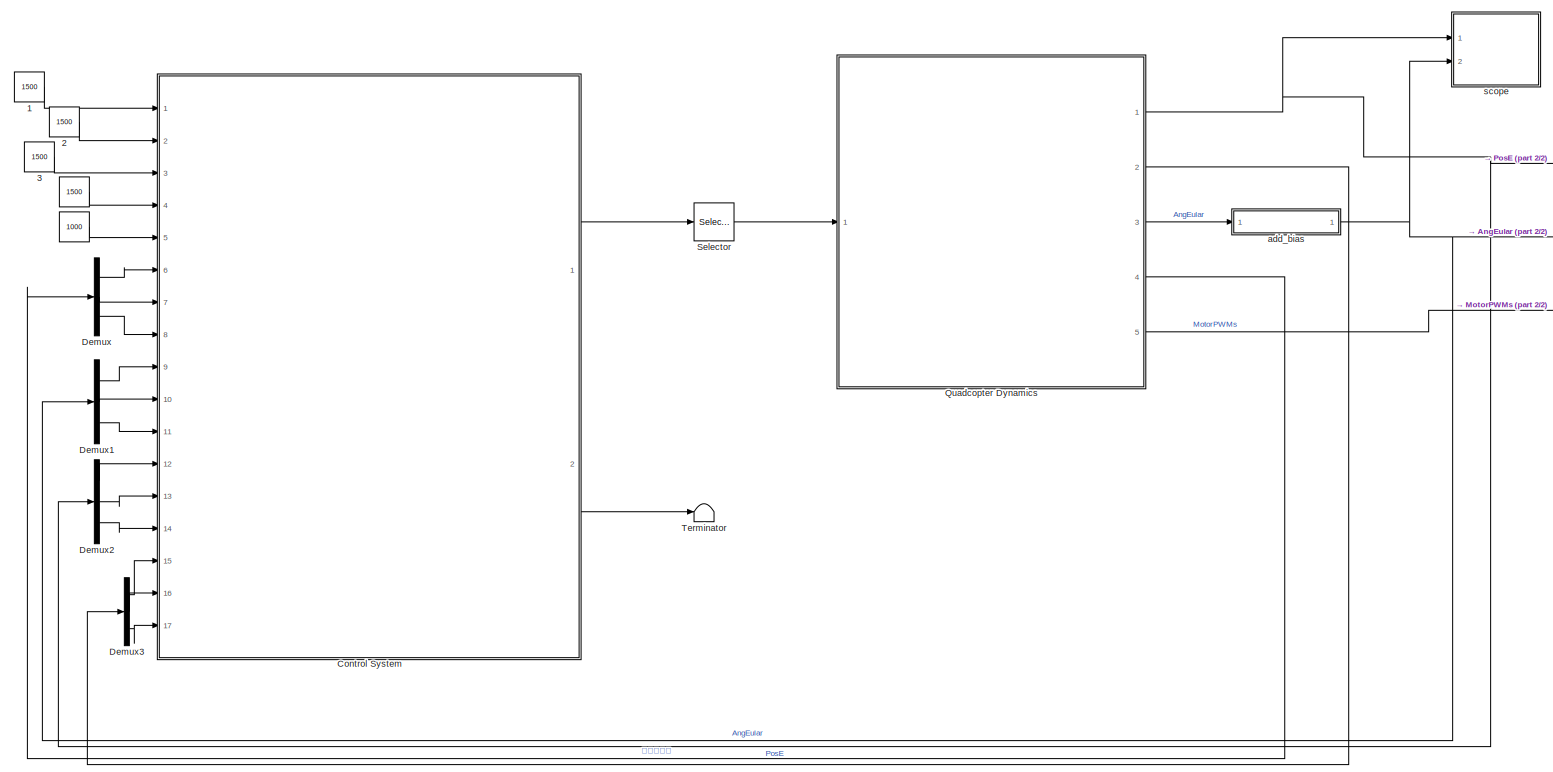
[diagram: root canvas - part 1/2, most of the canvas]
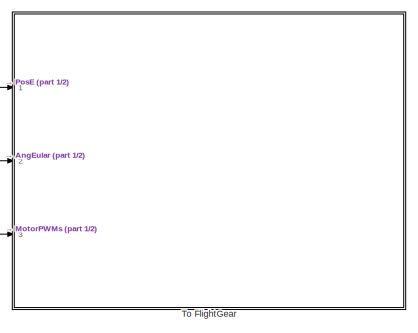
[diagram: root canvas - part 2/2, top right region]
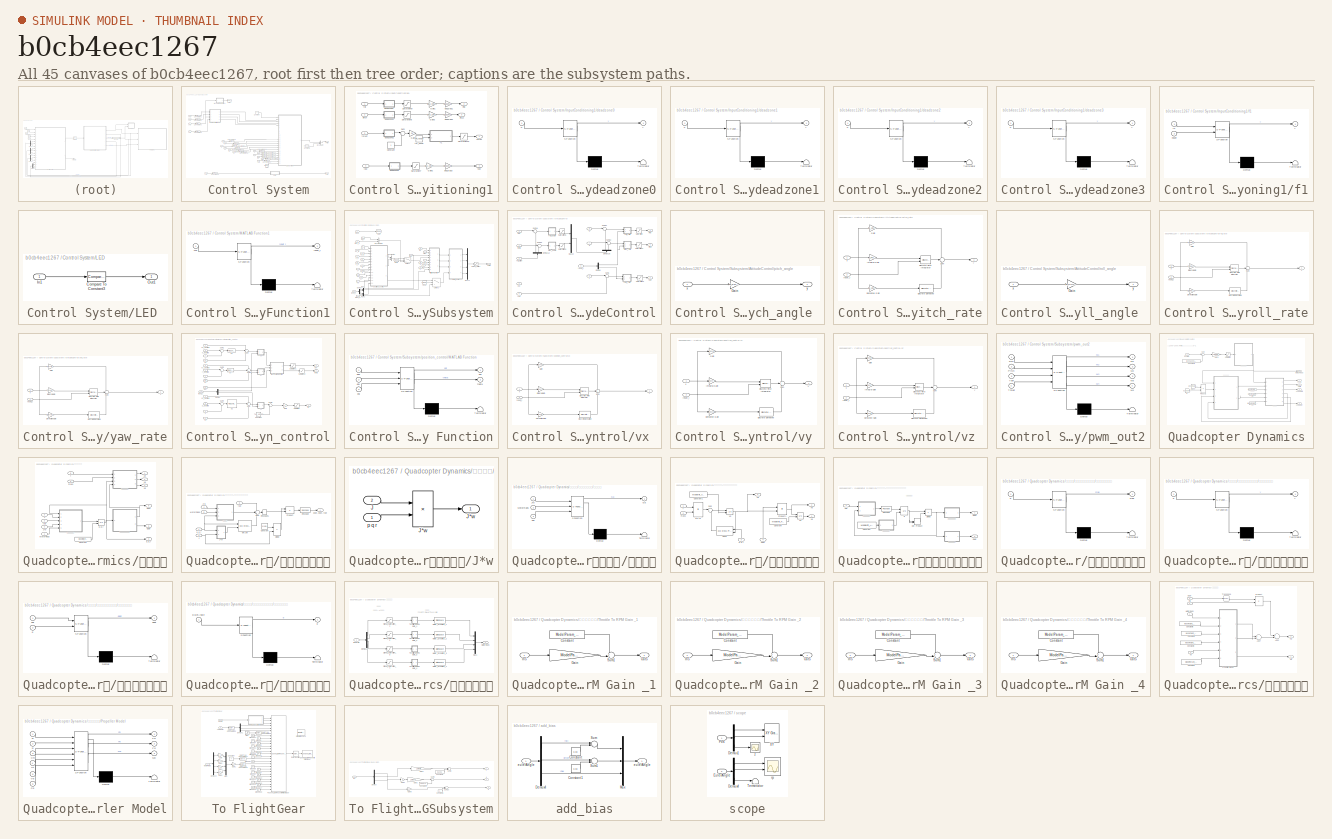
[diagram: thumbnail index - all 45 canvases of the model, root first then tree order]
MODEL slx_b0cb4eec1267
KIND model
CONFIG AbsTol = auto
CONFIG EnableMultiTasking = off
CONFIG FixedStep = 0.001
CONFIG InitFcn = Init_control;
CONFIG MaxStep = auto
CONFIG MinStep = auto
CONFIG RelTol = 1e-3
CONFIG SampleTimeConstraint = Unconstrained
CONFIG Solver = ode4
CONFIG SolverName = ode4
CONFIG StartTime = 0.0
CONFIG StopTime = 2
BLOCK [Constant]  
  OutDataTypeStr = uint16
  Value = 1000
BLOCK [Constant]           
  OutDataTypeStr = uint16
  Value = 1500
BLOCK [Constant]    1
  OutDataTypeStr = uint16
  Value = 1500
BLOCK [Constant]    2
  OutDataTypeStr = uint16
  Value = 1500
BLOCK [Constant]    3
  OutDataTypeStr = uint16
  Value = 1500
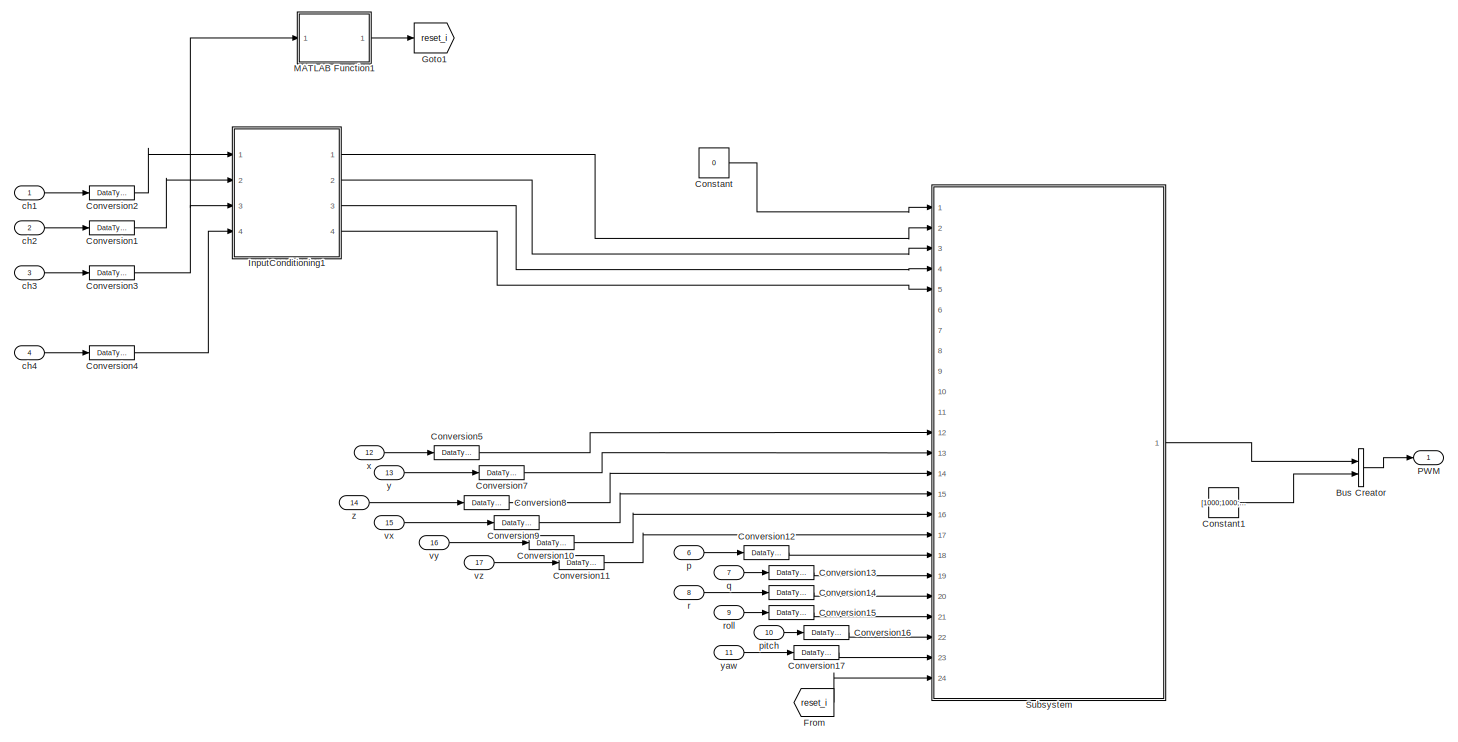
[diagram: Control System - part 1/2, most of the canvas]
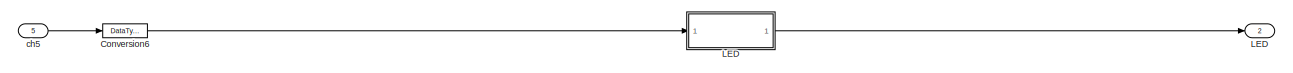
[diagram: Control System - part 2/2, full width, bottom band]
BLOCK [SubSystem] Control System
  Ports = [17, 2]
  RequestExecContextInheritance = off
  Variant = off
BLOCK [BusCreator] Control System/Bus Creator
  DisplayOption = bar
  InheritFromInputs = on
  Inputs = 2
  Ports = [2, 1]
BLOCK [Constant] Control System/Constant
  Value = 0
BLOCK [Constant] Control System/Constant1
  Value = [1000;1000;1000;1000]
BLOCK [DataTypeConversion] Control System/Conversion1
  OutDataTypeStr = double
  RndMeth = Floor
  SaturateOnIntegerOverflow = off
BLOCK [DataTypeConversion] Control System/Conversion10
  OutDataTypeStr = double
  RndMeth = Floor
  SaturateOnIntegerOverflow = off
BLOCK [DataTypeConversion] Control System/Conversion11
  OutDataTypeStr = double
  RndMeth = Floor
  SaturateOnIntegerOverflow = off
BLOCK [DataTypeConversion] Control System/Conversion12
  OutDataTypeStr = double
  RndMeth = Floor
  SaturateOnIntegerOverflow = off
BLOCK [DataTypeConversion] Control System/Conversion13
  OutDataTypeStr = double
  RndMeth = Floor
  SaturateOnIntegerOverflow = off
BLOCK [DataTypeConversion] Control System/Conversion14
  OutDataTypeStr = double
  RndMeth = Floor
  SaturateOnIntegerOverflow = off
BLOCK [DataTypeConversion] Control System/Conversion15
  OutDataTypeStr = double
  RndMeth = Floor
  SaturateOnIntegerOverflow = off
BLOCK [DataTypeConversion] Control System/Conversion16
  OutDataTypeStr = double
  RndMeth = Floor
  SaturateOnIntegerOverflow = off
BLOCK [DataTypeConversion] Control System/Conversion17
  OutDataTypeStr = double
  RndMeth = Floor
  SaturateOnIntegerOverflow = off
BLOCK [DataTypeConversion] Control System/Conversion2
  OutDataTypeStr = double
  RndMeth = Floor
  SaturateOnIntegerOverflow = off
BLOCK [DataTypeConversion] Control System/Conversion3
  OutDataTypeStr = double
  RndMeth = Floor
  SaturateOnIntegerOverflow = off
BLOCK [DataTypeConversion] Control System/Conversion4
  OutDataTypeStr = double
  RndMeth = Floor
  SaturateOnIntegerOverflow = off
BLOCK [DataTypeConversion] Control System/Conversion5
  OutDataTypeStr = double
  RndMeth = Floor
  SaturateOnIntegerOverflow = off
BLOCK [DataTypeConversion] Control System/Conversion6
  OutDataTypeStr = double
  RndMeth = Floor
  SaturateOnIntegerOverflow = off
BLOCK [DataTypeConversion] Control System/Conversion7
  OutDataTypeStr = double
  RndMeth = Floor
  SaturateOnIntegerOverflow = off
BLOCK [DataTypeConversion] Control System/Conversion8
  OutDataTypeStr = double
  RndMeth = Floor
  SaturateOnIntegerOverflow = off
BLOCK [DataTypeConversion] Control System/Conversion9
  OutDataTypeStr = double
  RndMeth = Floor
  SaturateOnIntegerOverflow = off
BLOCK [From] Control System/From
  GotoTag = reset_i
BLOCK [Goto] Control System/Goto1
  GotoTag = reset_i
BLOCK [SubSystem] Control System/InputConditioning1
  Ports = [4, 4]
  RequestExecContextInheritance = off
  Variant = off
BLOCK [Constant] Control System/InputConditioning1/Constant
BLOCK [Gain] Control System/InputConditioning1/Gain
  Gain = 0.5
  OutDataTypeStr = Inherit: Inherit via internal rule
  ParamDataTypeStr = Inherit: Inherit via internal rule
  SaturateOnIntegerOverflow = off
BLOCK [Gain] Control System/InputConditioning1/Gain1
  Gain = MAX_CONTROL_ANGLE_ROLL
  OutDataTypeStr = Inherit: Inherit via back propagation
  ParamDataTypeStr = Inherit: Inherit via internal rule
  SaturateOnIntegerOverflow = off
BLOCK [Gain] Control System/InputConditioning1/Gain2
  Gain = MAX_CONTROL_ANGLE_RATE_Y
  OutDataTypeStr = Inherit: Inherit via internal rule
  ParamDataTypeStr = Inherit: Inherit via internal rule
  SaturateOnIntegerOverflow = off
BLOCK [Gain] Control System/InputConditioning1/Gain3
  Gain = MAX_CONTROL_ANGLE_PITCH
  OutDataTypeStr = Inherit: Inherit via back propagation
  ParamDataTypeStr = Inherit: Inherit via internal rule
  SaturateOnIntegerOverflow = off
BLOCK [Outport] Control System/InputConditioning1/Pitch
  IconDisplay = Port number
  Port = 3
BLOCK [Outport] Control System/InputConditioning1/Roll
  IconDisplay = Port number
  Port = 2
BLOCK [Saturate] Control System/InputConditioning1/Saturation10
  InputPortMap = u0
  LowerLimit = 0
  Ports = [1, 1]
  UpperLimit = 1
BLOCK [Saturate] Control System/InputConditioning1/Saturation7
  InputPortMap = u0
  LowerLimit = -1
  Ports = [1, 1]
  UpperLimit = 1
BLOCK [Saturate] Control System/InputConditioning1/Saturation8
  InputPortMap = u0
  LowerLimit = -1
  Ports = [1, 1]
  UpperLimit = 1
BLOCK [Saturate] Control System/InputConditioning1/Saturation9
  InputPortMap = u0
  LowerLimit = -1
  Ports = [1, 1]
  UpperLimit = 1
BLOCK [Sum] Control System/InputConditioning1/Sum
  IconShape = round
  InputSameDT = off
  Inputs = |++
  OutDataTypeStr = Inherit: Inherit via internal rule
  Ports = [2, 1]
  SaturateOnIntegerOverflow = off
BLOCK [Outport] Control System/InputConditioning1/Thrust
  IconDisplay = Port number
BLOCK [Outport] Control System/InputConditioning1/Yaw
  IconDisplay = Port number
  Port = 4
BLOCK [SubSystem] Control System/InputConditioning1/deadzone0
  ErrorFcn = Stateflow.Translate.translate
  PermitHierarchicalResolution = ExplicitOnly
  Ports = [1, 1]
  RequestExecContextInheritance = off
  SFBlockType = MATLAB Function
  TreatAsAtomicUnit = on
  Variant = off
BLOCK [Demux] Control System/InputConditioning1/deadzone0/ Demux 
  Outputs = 1
  Ports = [1, 1]
BLOCK [S-Function] Control System/InputConditioning1/deadzone0/ SFunction 
  EnableBusSupport = on
  FunctionName = sf_sfun
  PortCounts = [1 2]
  Ports = [1, 2]
  SFcnIsStateOwnerBlock = off
  SFunctionDeploymentMode = off
  Tag = Stateflow S-Function StabilizeControl_Sim 4
BLOCK [Terminator] Control System/InputConditioning1/deadzone0/ Terminator 
BLOCK [Inport] Control System/InputConditioning1/deadzone0/u
  IconDisplay = Port number
BLOCK [Outport] Control System/InputConditioning1/deadzone0/y
  IconDisplay = Port number
BLOCK [SubSystem] Control System/InputConditioning1/deadzone1
  ErrorFcn = Stateflow.Translate.translate
  PermitHierarchicalResolution = ExplicitOnly
  Ports = [1, 1]
  RequestExecContextInheritance = off
  SFBlockType = MATLAB Function
  TreatAsAtomicUnit = on
  Variant = off
BLOCK [Demux] Control System/InputConditioning1/deadzone1/ Demux 
  Outputs = 1
  Ports = [1, 1]
BLOCK [S-Function] Control System/InputConditioning1/deadzone1/ SFunction 
  EnableBusSupport = on
  FunctionName = sf_sfun
  PortCounts = [1 2]
  Ports = [1, 2]
  SFcnIsStateOwnerBlock = off
  SFunctionDeploymentMode = off
  Tag = Stateflow S-Function StabilizeControl_Sim 5
BLOCK [Terminator] Control System/InputConditioning1/deadzone1/ Terminator 
BLOCK [Inport] Control System/InputConditioning1/deadzone1/u
  IconDisplay = Port number
BLOCK [Outport] Control System/InputConditioning1/deadzone1/y
  IconDisplay = Port number
BLOCK [SubSystem] Control System/InputConditioning1/deadzone2
  ErrorFcn = Stateflow.Translate.translate
  PermitHierarchicalResolution = ExplicitOnly
  Ports = [1, 1]
  RequestExecContextInheritance = off
  SFBlockType = MATLAB Function
  TreatAsAtomicUnit = on
  Variant = off
BLOCK [Demux] Control System/InputConditioning1/deadzone2/ Demux 
  Outputs = 1
  Ports = [1, 1]
BLOCK [S-Function] Control System/InputConditioning1/deadzone2/ SFunction 
  EnableBusSupport = on
  FunctionName = sf_sfun
  PortCounts = [1 2]
  Ports = [1, 2]
  SFcnIsStateOwnerBlock = off
  SFunctionDeploymentMode = off
  Tag = Stateflow S-Function StabilizeControl_Sim 6
BLOCK [Terminator] Control System/InputConditioning1/deadzone2/ Terminator 
BLOCK [Inport] Control System/InputConditioning1/deadzone2/u
  IconDisplay = Port number
BLOCK [Outport] Control System/InputConditioning1/deadzone2/y
  IconDisplay = Port number
BLOCK [SubSystem] Control System/InputConditioning1/deadzone3
  ErrorFcn = Stateflow.Translate.translate
  PermitHierarchicalResolution = ExplicitOnly
  Ports = [1, 1]
  RequestExecContextInheritance = off
  SFBlockType = MATLAB Function
  TreatAsAtomicUnit = on
  Variant = off
BLOCK [Demux] Control System/InputConditioning1/deadzone3/ Demux 
  Outputs = 1
  Ports = [1, 1]
BLOCK [S-Function] Control System/InputConditioning1/deadzone3/ SFunction 
  EnableBusSupport = on
  FunctionName = sf_sfun
  PortCounts = [1 2]
  Ports = [1, 2]
  SFcnIsStateOwnerBlock = off
  SFunctionDeploymentMode = off
  Tag = Stateflow S-Function StabilizeControl_Sim 10
BLOCK [Terminator] Control System/InputConditioning1/deadzone3/ Terminator 
BLOCK [Inport] Control System/InputConditioning1/deadzone3/u
  IconDisplay = Port number
BLOCK [Outport] Control System/InputConditioning1/deadzone3/y
  IconDisplay = Port number
BLOCK [Gain] Control System/InputConditioning1/deg2rad1
  Gain = DEG2RAD
  OutDataTypeStr = Inherit: Inherit via internal rule
  ParamDataTypeStr = Inherit: Inherit via internal rule
  SaturateOnIntegerOverflow = off
BLOCK [Gain] Control System/InputConditioning1/deg2rad2
  Gain = DEG2RAD
  OutDataTypeStr = Inherit: Inherit via internal rule
  ParamDataTypeStr = Inherit: Inherit via internal rule
  SaturateOnIntegerOverflow = off
BLOCK [Gain] Control System/InputConditioning1/deg2rad3
  Gain = DEG2RAD
  OutDataTypeStr = Inherit: Inherit via internal rule
  ParamDataTypeStr = Inherit: Inherit via internal rule
  SaturateOnIntegerOverflow = off
BLOCK [SubSystem] Control System/InputConditioning1/f1
  ErrorFcn = Stateflow.Translate.translate
  PermitHierarchicalResolution = ExplicitOnly
  Ports = [2, 1]
  RequestExecContextInheritance = off
  SFBlockType = MATLAB Function
  TreatAsAtomicUnit = on
  Variant = off
BLOCK [Demux] Control System/InputConditioning1/f1/ Demux 
  Outputs = 1
  Ports = [1, 1]
BLOCK [S-Function] Control System/InputConditioning1/f1/ SFunction 
  EnableBusSupport = on
  FunctionName = sf_sfun
  PortCounts = [2 2]
  Ports = [2, 2]
  SFcnIsStateOwnerBlock = off
  SFunctionDeploymentMode = off
  Tag = Stateflow S-Function StabilizeControl_Sim 32
BLOCK [Terminator] Control System/InputConditioning1/f1/ Terminator 
BLOCK [Inport] Control System/InputConditioning1/f1/hover
  IconDisplay = Port number
  Port = 2
BLOCK [Inport] Control System/InputConditioning1/f1/in
  IconDisplay = Port number
BLOCK [Outport] Control System/InputConditioning1/f1/y
  IconDisplay = Port number
BLOCK [Inport] Control System/InputConditioning1/pitch
  IconDisplay = Port number
  Port = 2
BLOCK [Inport] Control System/InputConditioning1/roll
  IconDisplay = Port number
BLOCK [Constant] Control System/InputConditioning1/thr_hover 
  Value = THR_HOVER
BLOCK [Inport] Control System/InputConditioning1/thrust
  IconDisplay = Port number
  Port = 3
BLOCK [Inport] Control System/InputConditioning1/yaw
  IconDisplay = Port number
  Port = 4
BLOCK [Outport] Control System/LED
  IconDisplay = Port number
  Port = 2
  PortDimensions = 1
  SamplingMode = Sample based
  SignalType = real
BLOCK [SubSystem] Control System/LED 
  Ports = [1, 1]
  RequestExecContextInheritance = off
  Variant = off
BLOCK [Reference] Control System/LED /Compare To Constant3  REF=simulink/Logic and Bit
Operations/Compare
To Constant
  Ports = [1, 1]
  SourceBlock = simulink/Logic and Bit\nOperations/Compare\nTo Constant
  SourceType = Compare To Constant
BLOCK [Inport] Control System/LED /In1
  IconDisplay = Port number
BLOCK [Outport] Control System/LED /Out1
  IconDisplay = Port number
BLOCK [SubSystem] Control System/MATLAB Function1
  ErrorFcn = Stateflow.Translate.translate
  PermitHierarchicalResolution = ExplicitOnly
  Ports = [1, 1]
  RequestExecContextInheritance = off
  SFBlockType = MATLAB Function
  TreatAsAtomicUnit = on
  Variant = off
BLOCK [Demux] Control System/MATLAB Function1/ Demux 
  Outputs = 1
  Ports = [1, 1]
BLOCK [S-Function] Control System/MATLAB Function1/ SFunction 
  EnableBusSupport = on
  FunctionName = sf_sfun
  PortCounts = [1 2]
  Ports = [1, 2]
  SFcnIsStateOwnerBlock = off
  SFunctionDeploymentMode = off
  Tag = Stateflow S-Function StabilizeControl_Sim 1
BLOCK [Terminator] Control System/MATLAB Function1/ Terminator 
BLOCK [Inport] Control System/MATLAB Function1/ch3
  IconDisplay = Port number
BLOCK [Outport] Control System/MATLAB Function1/reset_i
  IconDisplay = Port number
BLOCK [Outport] Control System/PWM
  IconDisplay = Port number
  PortDimensions = 8
  SamplingMode = Sample based
  SignalType = real
BLOCK [SubSystem] Control System/Subsystem
  Ports = [24, 1]
  RequestExecContextInheritance = off
  Variant = off
BLOCK [SubSystem] Control System/Subsystem/AttitudeControl
  Ports = [9, 3]
  RequestExecContextInheritance = off
  Variant = off
BLOCK [Demux] Control System/Subsystem/AttitudeControl/Demux
  DisplayOption = bar
  Outputs = 2
  Ports = [1, 2]
BLOCK [Demux] Control System/Subsystem/AttitudeControl/Demux12
  DisplayOption = bar
  Outputs = 2
  Ports = [1, 2]
BLOCK [Demux] Control System/Subsystem/AttitudeControl/Demux16
  DisplayOption = bar
  Outputs = 2
  Ports = [1, 2]
BLOCK [Mux] Control System/Subsystem/AttitudeControl/Mux22
  DisplayOption = bar
  Inputs = 2
  Ports = [2, 1]
BLOCK [Outport] Control System/Subsystem/AttitudeControl/Pitch
  IconDisplay = Port number
  Port = 2
BLOCK [Outport] Control System/Subsystem/AttitudeControl/Roll
  IconDisplay = Port number
BLOCK [Saturate] Control System/Subsystem/AttitudeControl/Saturation
  InputPortMap = u0
  LowerLimit = -1
  Ports = [1, 1]
  UpperLimit = 1
BLOCK [Saturate] Control System/Subsystem/AttitudeControl/Saturation1
  InputPortMap = u0
  LowerLimit = -1
  Ports = [1, 1]
  UpperLimit = 1
BLOCK [Saturate] Control System/Subsystem/AttitudeControl/Saturation2
  InputPortMap = u0
  Ports = [1, 1]
BLOCK [Saturate] Control System/Subsystem/AttitudeControl/Saturation3
  InputPortMap = u0
  LowerLimit = -MAX_CONTROL_ANGLE_RATE_PITCH
  Ports = [1, 1]
  UpperLimit = MAX_CONTROL_ANGLE_RATE_PITCH
BLOCK [Saturate] Control System/Subsystem/AttitudeControl/Saturation5
  InputPortMap = u0
  LowerLimit = -MAX_CONTROL_ANGLE_RATE_ROLL
  Ports = [1, 1]
  UpperLimit = MAX_CONTROL_ANGLE_RATE_ROLL
BLOCK [Sum] Control System/Subsystem/AttitudeControl/Sum1
  IconShape = round
  InputSameDT = off
  Inputs = |-+
  OutDataTypeStr = Inherit: Inherit via internal rule
  Ports = [2, 1]
  SaturateOnIntegerOverflow = off
BLOCK [Sum] Control System/Subsystem/AttitudeControl/Sum18
  IconShape = round
  InputSameDT = off
  Inputs = |-+
  OutDataTypeStr = Inherit: Inherit via internal rule
  OutMax = 90
  OutMin = -90
  Ports = [2, 1]
  SaturateOnIntegerOverflow = off
BLOCK [Sum] Control System/Subsystem/AttitudeControl/Sum19
  IconShape = round
  InputSameDT = off
  Inputs = |-+
  OutDataTypeStr = Inherit: Inherit via internal rule
  OutMax = 90
  OutMin = -90
  Ports = [2, 1]
  SaturateOnIntegerOverflow = off
BLOCK [Sum] Control System/Subsystem/AttitudeControl/Sum21
  IconShape = round
  InputSameDT = off
  Inputs = |-+
  OutDataTypeStr = Inherit: Inherit via internal rule
  Ports = [2, 1]
  SaturateOnIntegerOverflow = off
BLOCK [Sum] Control System/Subsystem/AttitudeControl/Sum22
  IconShape = round
  InputSameDT = off
  Inputs = |-+
  OutDataTypeStr = Inherit: Inherit via internal rule
  Ports = [2, 1]
  SaturateOnIntegerOverflow = off
BLOCK [Outport] Control System/Subsystem/AttitudeControl/Yaw
  IconDisplay = Port number
  Port = 3
BLOCK [Inport] Control System/Subsystem/AttitudeControl/p
  IconDisplay = Port number
  Port = 6
BLOCK [Inport] Control System/Subsystem/AttitudeControl/phi
  IconDisplay = Port number
BLOCK [SubSystem] Control System/Subsystem/AttitudeControl/pitch_angle 
  Ports = [1, 1]
  RequestExecContextInheritance = off
  Variant = off
BLOCK [Gain] Control System/Subsystem/AttitudeControl/pitch_angle /Gain
  Gain = Kp_PITCH_ANGLE
  OutDataTypeStr = Inherit: Inherit via internal rule
  ParamDataTypeStr = Inherit: Inherit via internal rule
  SaturateOnIntegerOverflow = off
BLOCK [Inport] Control System/Subsystem/AttitudeControl/pitch_angle /x
  IconDisplay = Port number
BLOCK [Outport] Control System/Subsystem/AttitudeControl/pitch_angle /y
  IconDisplay = Port number
  InitialOutput = 0
BLOCK [SubSystem] Control System/Subsystem/AttitudeControl/pitch_rate
  Ports = [2, 1]
  RequestExecContextInheritance = off
  Variant = off
BLOCK [Gain] Control System/Subsystem/AttitudeControl/pitch_rate/Derivative Gain
  DisableCoverage = on
  Gain = Kd_PITCH_AgngleRate
  OutDataTypeStr = Inherit: Inherit via internal rule
  OutMax = 100
  OutMin = -100
  ParamDataTypeStr = Inherit: Inherit via internal rule
  ParamMax = 100
  ParamMin = -100
  SaturateOnIntegerOverflow = off
BLOCK [Reference] Control System/Subsystem/AttitudeControl/pitch_rate/Discrete Derivative  REF=simulink/Discrete/Discrete Derivative
  Ports = [1, 1]
  SourceBlock = simulink/Discrete/Discrete Derivative
  SourceType = Discrete Derivative
BLOCK [DiscreteIntegrator] Control System/Subsystem/AttitudeControl/pitch_rate/Discrete-Time Integrator
  ExternalReset = level
  ICPrevOutput = DiscIntNeverNeededParam
  ICPrevScaledInput = DiscIntNeverNeededParam
  InitialConditionSetting = State (most efficient)
  LimitOutput = on
  LowerSaturationLimit = Saturation_I_RP_Min
  Ports = [2, 1]
  SampleTime = -1
  UpperSaturationLimit = Saturation_I_RP_Max
BLOCK [Gain] Control System/Subsystem/AttitudeControl/pitch_rate/Gain
  Gain = Kp_PITCH_AgngleRate
  OutDataTypeStr = Inherit: Inherit via internal rule
  ParamDataTypeStr = Inherit: Inherit via internal rule
  SaturateOnIntegerOverflow = off
BLOCK [Gain] Control System/Subsystem/AttitudeControl/pitch_rate/Integral Gain
  DisableCoverage = on
  Gain = Ki_PITCH_AgngleRate
  OutDataTypeStr = Inherit: Inherit via internal rule
  ParamDataTypeStr = Inherit: Inherit via internal rule
  SaturateOnIntegerOverflow = off
BLOCK [Sum] Control System/Subsystem/AttitudeControl/pitch_rate/Sum
  IconShape = round
  InputSameDT = off
  Inputs = +++
  OutDataTypeStr = Inherit: Inherit via internal rule
  Ports = [3, 1]
  SaturateOnIntegerOverflow = off
BLOCK [Inport] Control System/Subsystem/AttitudeControl/pitch_rate/reset_i
  IconDisplay = Port number
  Port = 2
BLOCK [Inport] Control System/Subsystem/AttitudeControl/pitch_rate/x
  IconDisplay = Port number
BLOCK [Outport] Control System/Subsystem/AttitudeControl/pitch_rate/y
  IconDisplay = Port number
  InitialOutput = 0
BLOCK [Inport] Control System/Subsystem/AttitudeControl/psi
  IconDisplay = Port number
  Port = 3
BLOCK [Inport] Control System/Subsystem/AttitudeControl/q
  IconDisplay = Port number
  Port = 7
BLOCK [Inport] Control System/Subsystem/AttitudeControl/r
  IconDisplay = Port number
  Port = 8
BLOCK [Inport] Control System/Subsystem/AttitudeControl/reset_i
  IconDisplay = Port number
  Port = 9
BLOCK [SubSystem] Control System/Subsystem/AttitudeControl/roll_angle 
  Ports = [1, 1]
  RequestExecContextInheritance = off
  Variant = off
BLOCK [Gain] Control System/Subsystem/AttitudeControl/roll_angle /Gain
  Gain = Kp_ROLL_ANGLE
  OutDataTypeStr = Inherit: Inherit via internal rule
  ParamDataTypeStr = Inherit: Inherit via internal rule
  SaturateOnIntegerOverflow = off
BLOCK [Inport] Control System/Subsystem/AttitudeControl/roll_angle /x
  IconDisplay = Port number
BLOCK [Outport] Control System/Subsystem/AttitudeControl/roll_angle /y
  IconDisplay = Port number
  InitialOutput = 0
BLOCK [Inport] Control System/Subsystem/AttitudeControl/roll_pitch
  IconDisplay = Port number
  Port = 4
BLOCK [SubSystem] Control System/Subsystem/AttitudeControl/roll_rate
  Ports = [2, 1]
  RequestExecContextInheritance = off
  Variant = off
BLOCK [Gain] Control System/Subsystem/AttitudeControl/roll_rate/Derivative Gain
  DisableCoverage = on
  Gain = Kd_ROLL_AgngleRate
  OutDataTypeStr = Inherit: Inherit via internal rule
  OutMax = 100
  OutMin = -100
  ParamDataTypeStr = Inherit: Inherit via internal rule
  ParamMax = 100
  ParamMin = -100
  SaturateOnIntegerOverflow = off
BLOCK [Reference] Control System/Subsystem/AttitudeControl/roll_rate/Discrete Derivative  REF=simulink/Discrete/Discrete Derivative
  Ports = [1, 1]
  SourceBlock = simulink/Discrete/Discrete Derivative
  SourceType = Discrete Derivative
BLOCK [DiscreteIntegrator] Control System/Subsystem/AttitudeControl/roll_rate/Discrete-Time Integrator
  ExternalReset = level
  ICPrevOutput = DiscIntNeverNeededParam
  ICPrevScaledInput = DiscIntNeverNeededParam
  InitialConditionSetting = State (most efficient)
  LimitOutput = on
  LowerSaturationLimit = Saturation_I_RP_Min
  Ports = [2, 1]
  SampleTime = -1
  UpperSaturationLimit = Saturation_I_RP_Max
BLOCK [Gain] Control System/Subsystem/AttitudeControl/roll_rate/Gain
  Gain = Kp_ROLL_AgngleRate
  OutDataTypeStr = Inherit: Inherit via internal rule
  ParamDataTypeStr = Inherit: Inherit via internal rule
  SaturateOnIntegerOverflow = off
BLOCK [Gain] Control System/Subsystem/AttitudeControl/roll_rate/Integral Gain
  DisableCoverage = on
  Gain = Ki_ROLL_AgngleRate
  OutDataTypeStr = Inherit: Inherit via internal rule
  ParamDataTypeStr = Inherit: Inherit via internal rule
  SaturateOnIntegerOverflow = off
BLOCK [Sum] Control System/Subsystem/AttitudeControl/roll_rate/Sum
  IconShape = round
  InputSameDT = off
  Inputs = +++
  OutDataTypeStr = Inherit: Inherit via internal rule
  Ports = [3, 1]
  SaturateOnIntegerOverflow = off
BLOCK [Inport] Control System/Subsystem/AttitudeControl/roll_rate/reset_i
  IconDisplay = Port number
  Port = 2
BLOCK [Inport] Control System/Subsystem/AttitudeControl/roll_rate/x
  IconDisplay = Port number
BLOCK [Outport] Control System/Subsystem/AttitudeControl/roll_rate/y
  IconDisplay = Port number
  InitialOutput = 0
BLOCK [Inport] Control System/Subsystem/AttitudeControl/theta
  IconDisplay = Port number
  Port = 2
BLOCK [Inport] Control System/Subsystem/AttitudeControl/yaw
  IconDisplay = Port number
  Port = 5
BLOCK [SubSystem] Control System/Subsystem/AttitudeControl/yaw_rate
  Ports = [2, 1]
  RequestExecContextInheritance = off
  Variant = off
BLOCK [Gain] Control System/Subsystem/AttitudeControl/yaw_rate/Derivative Gain
  DisableCoverage = on
  Gain = Kd_YAW_AngleRate
  OutDataTypeStr = Inherit: Inherit via internal rule
  OutMax = 100
  OutMin = -100
  ParamDataTypeStr = Inherit: Inherit via internal rule
  ParamMax = 100
  ParamMin = -100
  SaturateOnIntegerOverflow = off
BLOCK [Reference] Control System/Subsystem/AttitudeControl/yaw_rate/Discrete Derivative  REF=simulink/Discrete/Discrete Derivative
  Ports = [1, 1]
  SourceBlock = simulink/Discrete/Discrete Derivative
  SourceType = Discrete Derivative
BLOCK [DiscreteIntegrator] Control System/Subsystem/AttitudeControl/yaw_rate/Discrete-Time Integrator
  ExternalReset = level
  ICPrevOutput = DiscIntNeverNeededParam
  ICPrevScaledInput = DiscIntNeverNeededParam
  InitialConditionSetting = State (most efficient)
  LimitOutput = on
  LowerSaturationLimit = Saturation_I_Y_Min
  Ports = [2, 1]
  SampleTime = -1
  UpperSaturationLimit = Saturation_I_Y_Max
BLOCK [Gain] Control System/Subsystem/AttitudeControl/yaw_rate/Gain
  Gain = Kp_YAW_AngleRate
  OutDataTypeStr = Inherit: Inherit via internal rule
  ParamDataTypeStr = Inherit: Inherit via internal rule
  SaturateOnIntegerOverflow = off
BLOCK [Gain] Control System/Subsystem/AttitudeControl/yaw_rate/Integral Gain
  DisableCoverage = on
  Gain = Ki_YAW_AngleRate
  OutDataTypeStr = Inherit: Inherit via internal rule
  ParamDataTypeStr = Inherit: Inherit via internal rule
  SaturateOnIntegerOverflow = off
BLOCK [Sum] Control System/Subsystem/AttitudeControl/yaw_rate/Sum
  IconShape = round
  InputSameDT = off
  Inputs = +++
  OutDataTypeStr = Inherit: Inherit via internal rule
  Ports = [3, 1]
  SaturateOnIntegerOverflow = off
BLOCK [Inport] Control System/Subsystem/AttitudeControl/yaw_rate/reset_i
  IconDisplay = Port number
  Port = 2
BLOCK [Inport] Control System/Subsystem/AttitudeControl/yaw_rate/x
  IconDisplay = Port number
BLOCK [Outport] Control System/Subsystem/AttitudeControl/yaw_rate/y
  IconDisplay = Port number
  InitialOutput = 0
BLOCK [BusCreator] Control System/Subsystem/Bus Creator
  DisplayOption = bar
  InheritFromInputs = on
  Inputs = 2
  Ports = [2, 1]
BLOCK [BusCreator] Control System/Subsystem/Bus Creator1
  DisplayOption = bar
  InheritFromInputs = on
  Inputs = 2
  Ports = [2, 1]
BLOCK [Demux] Control System/Subsystem/Demux
  DisplayOption = bar
  Ports = [1, 4]
BLOCK [From] Control System/Subsystem/From
  GotoTag = mode
BLOCK [From] Control System/Subsystem/From1
  GotoTag = mode
BLOCK [Goto] Control System/Subsystem/Goto
  GotoTag = mode
BLOCK [Mux] Control System/Subsystem/Mux1
  DisplayOption = bar
  Inputs = 2
  Ports = [2, 1]
BLOCK [Mux] Control System/Subsystem/Mux12
  DisplayOption = bar
  Ports = [4, 1]
BLOCK [Mux] Control System/Subsystem/Mux2
  DisplayOption = bar
  Inputs = 2
  Ports = [2, 1]
BLOCK [Saturate] Control System/Subsystem/Output_Limits1
  InputPortMap = u0
  LowerLimit = 1000
  Ports = [1, 1]
  UpperLimit = 2000
BLOCK [Outport] Control System/Subsystem/PWM
  IconDisplay = Port number
  SamplingMode = Sample based
  SignalType = real
BLOCK [Switch] Control System/Subsystem/Switch1
  InputSameDT = off
  SaturateOnIntegerOverflow = off
  Threshold = 2
BLOCK [Switch] Control System/Subsystem/Switch2
  InputSameDT = off
  SaturateOnIntegerOverflow = off
  Threshold = 1
BLOCK [Inport] Control System/Subsystem/mode
  IconDisplay = Port number
BLOCK [Inport] Control System/Subsystem/p
  IconDisplay = Port number
  Port = 18
  PortDimensions = 1
  SamplingMode = Sample based
  SignalType = real
BLOCK [Inport] Control System/Subsystem/pitch
  IconDisplay = Port number
  Port = 22
  PortDimensions = 1
  SamplingMode = Sample based
  SignalType = real
BLOCK [Inport] Control System/Subsystem/pitch_d
  IconDisplay = Port number
  Port = 4
BLOCK [SubSystem] Control System/Subsystem/position_control
  Ports = [14, 3]
  RequestExecContextInheritance = off
  Variant = off
BLOCK [Constant] Control System/Subsystem/position_control/Constant
  Value = THR_HOVER
BLOCK [Demux] Control System/Subsystem/position_control/Demux
  DisplayOption = bar
  Outputs = 2
  Ports = [1, 2]
BLOCK [Gain] Control System/Subsystem/position_control/Gain
  Gain = -1
  OutDataTypeStr = Inherit: Inherit via internal rule
  ParamDataTypeStr = Inherit: Inherit via internal rule
  SaturateOnIntegerOverflow = off
BLOCK [SubSystem] Control System/Subsystem/position_control/MATLAB Function
  ErrorFcn = Stateflow.Translate.translate
  PermitHierarchicalResolution = ExplicitOnly
  Ports = [3, 2]
  RequestExecContextInheritance = off
  SFBlockType = MATLAB Function
  TreatAsAtomicUnit = on
  Variant = off
BLOCK [Demux] Control System/Subsystem/position_control/MATLAB Function/ Demux 
  Outputs = 1
  Ports = [1, 1]
BLOCK [S-Function] Control System/Subsystem/position_control/MATLAB Function/ SFunction 
  EnableBusSupport = on
  FunctionName = sf_sfun
  PortCounts = [3 3]
  Ports = [3, 3]
  SFcnIsStateOwnerBlock = off
  SFunctionDeploymentMode = off
  Tag = Stateflow S-Function StabilizeControl_Sim 13
BLOCK [Terminator] Control System/Subsystem/position_control/MATLAB Function/ Terminator 
BLOCK [Inport] Control System/Subsystem/position_control/MATLAB Function/eax
  IconDisplay = Port number
BLOCK [Inport] Control System/Subsystem/position_control/MATLAB Function/eay
  IconDisplay = Port number
  Port = 2
BLOCK [Outport] Control System/Subsystem/position_control/MATLAB Function/phi
  IconDisplay = Port number
BLOCK [Inport] Control System/Subsystem/position_control/MATLAB Function/psi
  IconDisplay = Port number
  Port = 3
BLOCK [Outport] Control System/Subsystem/position_control/MATLAB Function/theta
  IconDisplay = Port number
  Port = 2
BLOCK [Saturate] Control System/Subsystem/position_control/Saturation
  InputPortMap = u0
  LowerLimit = 0
  Ports = [1, 1]
  UpperLimit = 0.9
BLOCK [Saturate] Control System/Subsystem/position_control/Saturation1
  InputPortMap = u0
  LowerLimit = -MAX_CONTROL_ANGLE_ROLL*DEG2RAD
  Ports = [1, 1]
  UpperLimit = MAX_CONTROL_ANGLE_ROLL*DEG2RAD
BLOCK [Saturate] Control System/Subsystem/position_control/Saturation2
  InputPortMap = u0
  LowerLimit = -MAX_CONTROL_ANGLE_PITCH*DEG2RAD/2
  Ports = [1, 1]
  UpperLimit = MAX_CONTROL_ANGLE_PITCH*DEG2RAD/2
BLOCK [Sum] Control System/Subsystem/position_control/Sum
  IconShape = round
  InputSameDT = off
  Inputs = ++-
  OutDataTypeStr = Inherit: Inherit via internal rule
  Ports = [3, 1]
  SaturateOnIntegerOverflow = off
BLOCK [Sum] Control System/Subsystem/position_control/Sum1
  IconShape = round
  InputSameDT = off
  Inputs = |+-
  OutDataTypeStr = Inherit: Inherit via internal rule
  Ports = [2, 1]
  SaturateOnIntegerOverflow = off
BLOCK [Sum] Control System/Subsystem/position_control/Sum2
  IconShape = round
  InputSameDT = off
  Inputs = ++-
  OutDataTypeStr = Inherit: Inherit via internal rule
  Ports = [3, 1]
  SaturateOnIntegerOverflow = off
BLOCK [Sum] Control System/Subsystem/position_control/Sum3
  IconShape = round
  InputSameDT = off
  Inputs = |+-
  OutDataTypeStr = Inherit: Inherit via internal rule
  Ports = [2, 1]
  SaturateOnIntegerOverflow = off
BLOCK [Sum] Control System/Subsystem/position_control/Sum4
  IconShape = round
  InputSameDT = off
  Inputs = |+-
  OutDataTypeStr = Inherit: Inherit via internal rule
  Ports = [2, 1]
  SaturateOnIntegerOverflow = off
BLOCK [Sum] Control System/Subsystem/position_control/Sum6
  IconShape = round
  InputSameDT = off
  Inputs = |+-
  OutDataTypeStr = Inherit: Inherit via internal rule
  Ports = [2, 1]
  SaturateOnIntegerOverflow = off
BLOCK [Sum] Control System/Subsystem/position_control/Sum7
  IconShape = round
  InputSameDT = off
  Inputs = ++-
  OutDataTypeStr = Inherit: Inherit via internal rule
  Ports = [3, 1]
  SaturateOnIntegerOverflow = off
BLOCK [Outport] Control System/Subsystem/position_control/phi
  IconDisplay = Port number
BLOCK [Inport] Control System/Subsystem/position_control/psi
  IconDisplay = Port number
  Port = 13
BLOCK [Reference] Control System/Subsystem/position_control/px  REF=simulink/Continuous/PID Controller
  Ports = [1, 1]
  SourceBlock = simulink/Continuous/PID Controller
  SourceType = PID 1dof
BLOCK [Reference] Control System/Subsystem/position_control/py  REF=simulink/Continuous/PID Controller
  Ports = [1, 1]
  SourceBlock = simulink/Continuous/PID Controller
  SourceType = PID 1dof
BLOCK [Reference] Control System/Subsystem/position_control/pz  REF=simulink/Continuous/PID Controller
  Ports = [1, 1]
  SourceBlock = simulink/Continuous/PID Controller
  SourceType = PID 1dof
BLOCK [Inport] Control System/Subsystem/position_control/reset_i
  IconDisplay = Port number
  Port = 14
BLOCK [Outport] Control System/Subsystem/position_control/theta
  IconDisplay = Port number
  Port = 2
BLOCK [Outport] Control System/Subsystem/position_control/thr
  IconDisplay = Port number
  Port = 3
BLOCK [Inport] Control System/Subsystem/position_control/vx
  IconDisplay = Port number
  Port = 10
BLOCK [SubSystem] Control System/Subsystem/position_control/vx 
  Ports = [2, 1]
  RequestExecContextInheritance = off
  Variant = off
BLOCK [Gain] Control System/Subsystem/position_control/vx /Derivative Gain
  DisableCoverage = on
  Gain = Kvxd
  OutDataTypeStr = Inherit: Inherit via internal rule
  ParamDataTypeStr = Inherit: Inherit via internal rule
  SaturateOnIntegerOverflow = off
BLOCK [Reference] Control System/Subsystem/position_control/vx /Discrete Derivative  REF=simulink/Discrete/Discrete Derivative
  Ports = [1, 1]
  SourceBlock = simulink/Discrete/Discrete Derivative
  SourceType = Discrete Derivative
BLOCK [DiscreteIntegrator] Control System/Subsystem/position_control/vx /Discrete-Time Integrator
  ExternalReset = level
  ICPrevOutput = DiscIntNeverNeededParam
  ICPrevScaledInput = DiscIntNeverNeededParam
  InitialConditionSetting = State (most efficient)
  LimitOutput = on
  LowerSaturationLimit = -Saturation_I_ah
  Ports = [2, 1]
  SampleTime = -1
  UpperSaturationLimit = Saturation_I_ah
BLOCK [Gain] Control System/Subsystem/position_control/vx /Gain
  Gain = Kvxp
  OutDataTypeStr = Inherit: Inherit via internal rule
  ParamDataTypeStr = Inherit: Inherit via internal rule
  SaturateOnIntegerOverflow = off
BLOCK [Gain] Control System/Subsystem/position_control/vx /Integral Gain
  DisableCoverage = on
  Gain = Kvxi
  OutDataTypeStr = Inherit: Inherit via internal rule
  ParamDataTypeStr = Inherit: Inherit via internal rule
  SaturateOnIntegerOverflow = off
BLOCK [Sum] Control System/Subsystem/position_control/vx /Sum
  IconShape = round
  InputSameDT = off
  Inputs = +++
  OutDataTypeStr = Inherit: Inherit via internal rule
  Ports = [3, 1]
  SaturateOnIntegerOverflow = off
BLOCK [Inport] Control System/Subsystem/position_control/vx /reset_i
  IconDisplay = Port number
  Port = 2
BLOCK [Inport] Control System/Subsystem/position_control/vx /x
  IconDisplay = Port number
BLOCK [Outport] Control System/Subsystem/position_control/vx /y
  IconDisplay = Port number
  InitialOutput = 0
BLOCK [Inport] Control System/Subsystem/position_control/vx_desired
  IconDisplay = Port number
BLOCK [Inport] Control System/Subsystem/position_control/vy
  IconDisplay = Port number
  Port = 11
BLOCK [SubSystem] Control System/Subsystem/position_control/vy 
  Ports = [2, 1]
  RequestExecContextInheritance = off
  Variant = off
BLOCK [Gain] Control System/Subsystem/position_control/vy /Derivative Gain
  DisableCoverage = on
  Gain = Kvyd
  OutDataTypeStr = Inherit: Inherit via internal rule
  ParamDataTypeStr = Inherit: Inherit via internal rule
  SaturateOnIntegerOverflow = off
BLOCK [Reference] Control System/Subsystem/position_control/vy /Discrete Derivative  REF=simulink/Discrete/Discrete Derivative
  Ports = [1, 1]
  SourceBlock = simulink/Discrete/Discrete Derivative
  SourceType = Discrete Derivative
BLOCK [DiscreteIntegrator] Control System/Subsystem/position_control/vy /Discrete-Time Integrator
  ExternalReset = level
  ICPrevOutput = DiscIntNeverNeededParam
  ICPrevScaledInput = DiscIntNeverNeededParam
  InitialConditionSetting = State (most efficient)
  LimitOutput = on
  LowerSaturationLimit = -Saturation_I_ah
  Ports = [2, 1]
  SampleTime = -1
  UpperSaturationLimit = Saturation_I_ah
BLOCK [Gain] Control System/Subsystem/position_control/vy /Gain
  Gain = Kvyp
  OutDataTypeStr = Inherit: Inherit via internal rule
  ParamDataTypeStr = Inherit: Inherit via internal rule
  SaturateOnIntegerOverflow = off
BLOCK [Gain] Control System/Subsystem/position_control/vy /Integral Gain
  DisableCoverage = on
  Gain = Kvyi
  OutDataTypeStr = Inherit: Inherit via internal rule
  ParamDataTypeStr = Inherit: Inherit via internal rule
  SaturateOnIntegerOverflow = off
BLOCK [Sum] Control System/Subsystem/position_control/vy /Sum
  IconShape = round
  InputSameDT = off
  Inputs = +++
  OutDataTypeStr = Inherit: Inherit via internal rule
  Ports = [3, 1]
  SaturateOnIntegerOverflow = off
BLOCK [Inport] Control System/Subsystem/position_control/vy /reset_i
  IconDisplay = Port number
  Port = 2
BLOCK [Inport] Control System/Subsystem/position_control/vy /x
  IconDisplay = Port number
BLOCK [Outport] Control System/Subsystem/position_control/vy /y
  IconDisplay = Port number
  InitialOutput = 0
BLOCK [Inport] Control System/Subsystem/position_control/vy_desired
  IconDisplay = Port number
  Port = 2
BLOCK [Inport] Control System/Subsystem/position_control/vz
  IconDisplay = Port number
  Port = 12
BLOCK [SubSystem] Control System/Subsystem/position_control/vz 
  Ports = [2, 1]
  RequestExecContextInheritance = off
  Variant = off
BLOCK [Gain] Control System/Subsystem/position_control/vz /Derivative Gain
  DisableCoverage = on
  Gain = Kvzd
  OutDataTypeStr = Inherit: Inherit via internal rule
  ParamDataTypeStr = Inherit: Inherit via internal rule
  SaturateOnIntegerOverflow = off
BLOCK [Reference] Control System/Subsystem/position_control/vz /Discrete Derivative  REF=simulink/Discrete/Discrete Derivative
  Ports = [1, 1]
  SourceBlock = simulink/Discrete/Discrete Derivative
  SourceType = Discrete Derivative
BLOCK [DiscreteIntegrator] Control System/Subsystem/position_control/vz /Discrete-Time Integrator
  ExternalReset = level
  ICPrevOutput = DiscIntNeverNeededParam
  ICPrevScaledInput = DiscIntNeverNeededParam
  InitialConditionSetting = State (most efficient)
  LimitOutput = on
  LowerSaturationLimit = -Saturation_I_az
  Ports = [2, 1]
  SampleTime = -1
  UpperSaturationLimit = Saturation_I_az
BLOCK [Gain] Control System/Subsystem/position_control/vz /Gain
  Gain = Kvzp
  OutDataTypeStr = Inherit: Inherit via internal rule
  ParamDataTypeStr = Inherit: Inherit via internal rule
  SaturateOnIntegerOverflow = off
BLOCK [Gain] Control System/Subsystem/position_control/vz /Integral Gain
  DisableCoverage = on
  Gain = Kvzi
  OutDataTypeStr = Inherit: Inherit via internal rule
  ParamDataTypeStr = Inherit: Inherit via internal rule
  SaturateOnIntegerOverflow = off
BLOCK [Sum] Control System/Subsystem/position_control/vz /Sum
  IconShape = round
  InputSameDT = off
  Inputs = +++
  OutDataTypeStr = Inherit: Inherit via internal rule
  Ports = [3, 1]
  SaturateOnIntegerOverflow = off
BLOCK [Inport] Control System/Subsystem/position_control/vz /reset_i
  IconDisplay = Port number
  Port = 2
BLOCK [Inport] Control System/Subsystem/position_control/vz /x
  IconDisplay = Port number
BLOCK [Outport] Control System/Subsystem/position_control/vz /y
  IconDisplay = Port number
  InitialOutput = 0
BLOCK [Inport] Control System/Subsystem/position_control/vz_desired
  IconDisplay = Port number
  Port = 3
BLOCK [Inport] Control System/Subsystem/position_control/x
  IconDisplay = Port number
  Port = 7
BLOCK [Inport] Control System/Subsystem/position_control/x_desired
  IconDisplay = Port number
  Port = 4
BLOCK [Inport] Control System/Subsystem/position_control/y
  IconDisplay = Port number
  Port = 8
BLOCK [Inport] Control System/Subsystem/position_control/y_desired
  IconDisplay = Port number
  Port = 5
BLOCK [Inport] Control System/Subsystem/position_control/z
  IconDisplay = Port number
  Port = 9
BLOCK [Inport] Control System/Subsystem/position_control/z_desired
  IconDisplay = Port number
  Port = 6
BLOCK [Inport] Control System/Subsystem/psi
  IconDisplay = Port number
  Port = 23
  PortDimensions = 1
  SamplingMode = Sample based
  SignalType = real
BLOCK [SubSystem] Control System/Subsystem/pwm_out2
  ErrorFcn = Stateflow.Translate.translate
  PermitHierarchicalResolution = ExplicitOnly
  Ports = [4, 4]
  RequestExecContextInheritance = off
  SFBlockType = MATLAB Function
  SystemSampleTime = 0.004
  Variant = off
BLOCK [Demux] Control System/Subsystem/pwm_out2/ Demux 
  Outputs = 1
  Ports = [1, 1]
BLOCK [S-Function] Control System/Subsystem/pwm_out2/ SFunction 
  EnableBusSupport = on
  FunctionName = sf_sfun
  PortCounts = [4 5]
  Ports = [4, 5]
  SFcnIsStateOwnerBlock = off
  SFunctionDeploymentMode = off
  Tag = Stateflow S-Function StabilizeControl_Sim 2
BLOCK [Terminator] Control System/Subsystem/pwm_out2/ Terminator 
BLOCK [Outport] Control System/Subsystem/pwm_out2/M1
  IconDisplay = Port number
BLOCK [Outport] Control System/Subsystem/pwm_out2/M2
  IconDisplay = Port number
  Port = 2
BLOCK [Outport] Control System/Subsystem/pwm_out2/M3
  IconDisplay = Port number
  Port = 3
BLOCK [Outport] Control System/Subsystem/pwm_out2/M4
  IconDisplay = Port number
  Port = 4
BLOCK [Inport] Control System/Subsystem/pwm_out2/Pitch
  IconDisplay = Port number
  Port = 2
BLOCK [Inport] Control System/Subsystem/pwm_out2/Roll
  IconDisplay = Port number
BLOCK [Inport] Control System/Subsystem/pwm_out2/Thrust
  IconDisplay = Port number
  Port = 4
BLOCK [Inport] Control System/Subsystem/pwm_out2/Yaw
  IconDisplay = Port number
  Port = 3
BLOCK [Inport] Control System/Subsystem/q
  IconDisplay = Port number
  Port = 19
  PortDimensions = 1
  SamplingMode = Sample based
  SignalType = real
BLOCK [Inport] Control System/Subsystem/r
  IconDisplay = Port number
  Port = 20
  PortDimensions = 1
  SamplingMode = Sample based
  SignalType = real
BLOCK [Inport] Control System/Subsystem/reset_i
  IconDisplay = Port number
  Port = 24
BLOCK [Inport] Control System/Subsystem/roll
  IconDisplay = Port number
  Port = 21
  PortDimensions = 1
  SamplingMode = Sample based
  SignalType = real
BLOCK [Inport] Control System/Subsystem/roll_d
  IconDisplay = Port number
  Port = 3
BLOCK [Inport] Control System/Subsystem/thrust_d
  IconDisplay = Port number
  Port = 2
BLOCK [Inport] Control System/Subsystem/vx
  IconDisplay = Port number
  Port = 15
BLOCK [Inport] Control System/Subsystem/vx_d
  IconDisplay = Port number
  Port = 6
BLOCK [Inport] Control System/Subsystem/vy
  IconDisplay = Port number
  Port = 16
BLOCK [Inport] Control System/Subsystem/vy_d
  IconDisplay = Port number
  Port = 7
BLOCK [Inport] Control System/Subsystem/vz
  IconDisplay = Port number
  Port = 17
BLOCK [Inport] Control System/Subsystem/vz_d
  IconDisplay = Port number
  Port = 8
BLOCK [Inport] Control System/Subsystem/x
  IconDisplay = Port number
  Port = 12
BLOCK [Inport] Control System/Subsystem/x_d
  IconDisplay = Port number
  Port = 9
BLOCK [Inport] Control System/Subsystem/y
  IconDisplay = Port number
  Port = 13
BLOCK [Inport] Control System/Subsystem/y_d
  IconDisplay = Port number
  Port = 10
BLOCK [Inport] Control System/Subsystem/yaw_d
  IconDisplay = Port number
  Port = 5
BLOCK [Inport] Control System/Subsystem/z
  IconDisplay = Port number
  Port = 14
BLOCK [Inport] Control System/Subsystem/z_d
  IconDisplay = Port number
  Port = 11
BLOCK [Inport] Control System/ch1
  IconDisplay = Port number
  OutDataTypeStr = uint16
  PortDimensions = 1
  SamplingMode = Sample based
  SignalType = real
BLOCK [Inport] Control System/ch2
  IconDisplay = Port number
  OutDataTypeStr = uint16
  Port = 2
  PortDimensions = 1
  SamplingMode = Sample based
  SignalType = real
BLOCK [Inport] Control System/ch3
  IconDisplay = Port number
  OutDataTypeStr = uint16
  Port = 3
  PortDimensions = 1
  SamplingMode = Sample based
  SignalType = real
BLOCK [Inport] Control System/ch4
  IconDisplay = Port number
  OutDataTypeStr = uint16
  Port = 4
  PortDimensions = 1
  SamplingMode = Sample based
  SignalType = real
BLOCK [Inport] Control System/ch5
  IconDisplay = Port number
  Interpolate = off
  OutDataTypeStr = uint16
  Port = 5
  PortDimensions = 1
  SamplingMode = Sample based
  SignalType = real
BLOCK [Inport] Control System/p
  IconDisplay = Port number
  Port = 6
  PortDimensions = 1
  SamplingMode = Sample based
  SignalType = real
BLOCK [Inport] Control System/pitch
  IconDisplay = Port number
  Port = 10
  PortDimensions = 1
  SamplingMode = Sample based
  SignalType = real
BLOCK [Inport] Control System/q
  IconDisplay = Port number
  Port = 7
  PortDimensions = 1
  SamplingMode = Sample based
  SignalType = real
BLOCK [Inport] Control System/r
  IconDisplay = Port number
  Port = 8
  PortDimensions = 1
  SamplingMode = Sample based
  SignalType = real
BLOCK [Inport] Control System/roll
  IconDisplay = Port number
  Port = 9
  PortDimensions = 1
  SamplingMode = Sample based
  SignalType = real
BLOCK [Inport] Control System/vx
  IconDisplay = Port number
  Port = 15
BLOCK [Inport] Control System/vy
  IconDisplay = Port number
  Port = 16
BLOCK [Inport] Control System/vz
  IconDisplay = Port number
  Port = 17
BLOCK [Inport] Control System/x
  IconDisplay = Port number
  Port = 12
BLOCK [Inport] Control System/y
  IconDisplay = Port number
  Port = 13
BLOCK [Inport] Control System/yaw
  IconDisplay = Port number
  Port = 11
  PortDimensions = 1
  SamplingMode = Sample based
  SignalType = real
BLOCK [Inport] Control System/z
  IconDisplay = Port number
  Port = 14
BLOCK [Demux] Demux
  DisplayOption = bar
  Outputs = 3
  Ports = [1, 3]
BLOCK [Demux] Demux1
  DisplayOption = bar
  Outputs = 3
  Ports = [1, 3]
BLOCK [Demux] Demux2
  DisplayOption = bar
  Outputs = 3
  Ports = [1, 3]
BLOCK [Demux] Demux3
  DisplayOption = bar
  Outputs = 3
  Ports = [1, 3]
BLOCK [SubSystem] Quadcopter Dynamics
  Ports = [1, 5]
  RequestExecContextInheritance = off
  Variant = off
BLOCK [Outport] Quadcopter Dynamics/AngEuler
  IconDisplay = Port number
  Port = 3
BLOCK [Outport] Quadcopter Dynamics/AngRateB
  IconDisplay = Port number
  Port = 4
BLOCK [Constant] Quadcopter Dynamics/Constant2
  Value = [1000,1000,1000,1000]
BLOCK [Gain] Quadcopter Dynamics/Gain1
  Gain = 1/1000
  OutDataTypeStr = Inherit: Inherit via internal rule
  ParamDataTypeStr = Inherit: Inherit via internal rule
  SaturateOnIntegerOverflow = off
BLOCK [Constant] Quadcopter Dynamics/Jrp
  Value = ModelParam_motorJm
BLOCK [Outport] Quadcopter Dynamics/MotaoRads
  IconDisplay = Port number
  Port = 5
BLOCK [Outport] Quadcopter Dynamics/PosE
  IconDisplay = Port number
BLOCK [Product] Quadcopter Dynamics/Product1
  InputSameDT = off
  OutDataTypeStr = Inherit: Inherit via internal rule
  Ports = [2, 1]
  RndMeth = Floor
  SaturateOnIntegerOverflow = off
BLOCK [Saturate] Quadcopter Dynamics/Saturation
  InputPortMap = u0
  LowerLimit = 0
  Ports = [1, 1]
  UpperLimit = 1
BLOCK [Sum] Quadcopter Dynamics/Sum
  IconShape = round
  InputSameDT = off
  Inputs = |+-
  OutDataTypeStr = Inherit: Inherit via internal rule
  Ports = [2, 1]
  SaturateOnIntegerOverflow = off
BLOCK [Outport] Quadcopter Dynamics/VelE
  IconDisplay = Port number
  Port = 2
BLOCK [Constant] Quadcopter Dynamics/g
  Value = [0,0,ModelParam_envGravityAcc]
BLOCK [Inport] Quadcopter Dynamics/inPWMs
  IconDisplay = Port number
BLOCK [Constant] Quadcopter Dynamics/mass
  Value = ModelParam_uavMass
BLOCK [SubSystem] Quadcopter Dynamics/刚体模型
  Ports = [6, 6]
  RequestExecContextInheritance = off
  Variant = off
BLOCK [Constant] Quadcopter Dynamics/刚体模型/Constant
  Value = ModelInit_RateB
BLOCK [Outport] Quadcopter Dynamics/刚体模型/DCM
  IconDisplay = Port number
  Port = 5
BLOCK [Outport] Quadcopter Dynamics/刚体模型/Euler
  IconDisplay = Port number
  Port = 6
BLOCK [Inport] Quadcopter Dynamics/刚体模型/J
  IconDisplay = Port number
  Port = 3
BLOCK [Inport] Quadcopter Dynamics/刚体模型/Jrp
  IconDisplay = Port number
  Port = 4
BLOCK [Inport] Quadcopter Dynamics/刚体模型/MotorRads
  IconDisplay = Port number
BLOCK [Inport] Quadcopter Dynamics/刚体模型/f
  IconDisplay = Port number
  Port = 5
BLOCK [Inport] Quadcopter Dynamics/刚体模型/mass
  IconDisplay = Port number
  Port = 6
BLOCK [Integrator] Quadcopter Dynamics/刚体模型/p,q,r
  InitialConditionSource = external
  Ports = [2, 1]
BLOCK [Outport] Quadcopter Dynamics/刚体模型/p,q,r 
  IconDisplay = Port number
  Port = 3
BLOCK [Inport] Quadcopter Dynamics/刚体模型/tao
  IconDisplay = Port number
  Port = 2
BLOCK [Outport] Quadcopter Dynamics/刚体模型/vb 
  IconDisplay = Port number
  Port = 4
BLOCK [Outport] Quadcopter Dynamics/刚体模型/ve
  IconDisplay = Port number
  Port = 2
BLOCK [Outport] Quadcopter Dynamics/刚体模型/xe 
  IconDisplay = Port number
BLOCK [SubSystem] Quadcopter Dynamics/刚体模型/刚体动力学模型
  Ports = [5, 1]
  RequestExecContextInheritance = off
  Variant = off
BLOCK [Constant] Quadcopter Dynamics/刚体模型/刚体动力学模型/Constant
  Value = eye(3)
BLOCK [Product] Quadcopter Dynamics/刚体模型/刚体动力学模型/Divide
  InputSameDT = off
  Inputs = */
  Multiplication = Matrix(*)
  OutDataTypeStr = Inherit: Inherit via internal rule
  Ports = [2, 1]
  RndMeth = Floor
  SaturateOnIntegerOverflow = off
BLOCK [Inport] Quadcopter Dynamics/刚体模型/刚体动力学模型/J
  IconDisplay = Port number
  Port = 2
BLOCK [SubSystem] Quadcopter Dynamics/刚体模型/刚体动力学模型/J*w
  Ports = [2, 1]
  RequestExecContextInheritance = off
  Variant = off
BLOCK [Inport] Quadcopter Dynamics/刚体模型/刚体动力学模型/J*w/J
  IconDisplay = Port number
  Port = 2
BLOCK [Product] Quadcopter Dynamics/刚体模型/刚体动力学模型/J*w/J*w
  InputSameDT = off
  Multiplication = Matrix(*)
  OutDataTypeStr = Inherit: Inherit via internal rule
  Ports = [2, 1]
  RndMeth = Floor
  SaturateOnIntegerOverflow = off
BLOCK [Outport] Quadcopter Dynamics/刚体模型/刚体动力学模型/J*w/J*w 
  IconDisplay = Port number
BLOCK [Inport] Quadcopter Dynamics/刚体模型/刚体动力学模型/J*w/p q r
  IconDisplay = Port number
BLOCK [Inport] Quadcopter Dynamics/刚体模型/刚体动力学模型/Jrp
  IconDisplay = Port number
  Port = 4
BLOCK [Inport] Quadcopter Dynamics/刚体模型/刚体动力学模型/MotorRads
  IconDisplay = Port number
  Port = 5
BLOCK [Product] Quadcopter Dynamics/刚体模型/刚体动力学模型/Product
  InputSameDT = off
  Multiplication = Matrix(*)
  OutDataTypeStr = Inherit: Inherit via internal rule
  Ports = [2, 1]
  RndMeth = Floor
  SaturateOnIntegerOverflow = off
BLOCK [Reshape] Quadcopter Dynamics/刚体模型/刚体动力学模型/Reshape
  OutputDimensionality = Customize
  OutputDimensions = [3,1]
  Ports = [1, 1]
BLOCK [Reshape] Quadcopter Dynamics/刚体模型/刚体动力学模型/Reshape1
  OutputDimensionality = Column vector (2-D)
  Ports = [1, 1]
BLOCK [Sum] Quadcopter Dynamics/刚体模型/刚体动力学模型/Sum
  IconShape = round
  InputSameDT = off
  Inputs = 3
  OutDataTypeStr = Inherit: Inherit via internal rule
  Ports = [3, 1]
  SaturateOnIntegerOverflow = off
BLOCK [Inport] Quadcopter Dynamics/刚体模型/刚体动力学模型/p q r
  IconDisplay = Port number
BLOCK [Outport] Quadcopter Dynamics/刚体模型/刚体动力学模型/pdot,qdot,rdot
  IconDisplay = Port number
BLOCK [Inport] Quadcopter Dynamics/刚体模型/刚体动力学模型/tao
  IconDisplay = Port number
  Port = 3
BLOCK [Reference] Quadcopter Dynamics/刚体模型/刚体动力学模型/wx(Jw)  REF=aerolibutil/3x3 Cross Product
  Ports = [2, 1]
  SourceBlock = aerolibutil/3x3 Cross Product
  SourceType = CrossProduct
BLOCK [SubSystem] Quadcopter Dynamics/刚体模型/刚体动力学模型/陀螺力矩
  ErrorFcn = Stateflow.Translate.translate
  PermitHierarchicalResolution = ExplicitOnly
  Ports = [3, 1]
  RequestExecContextInheritance = off
  SFBlockType = MATLAB Function
  TreatAsAtomicUnit = on
  Variant = off
BLOCK [Demux] Quadcopter Dynamics/刚体模型/刚体动力学模型/陀螺力矩/ Demux 
  Outputs = 1
  Ports = [1, 1]
BLOCK [S-Function] Quadcopter Dynamics/刚体模型/刚体动力学模型/陀螺力矩/ SFunction 
  EnableBusSupport = on
  FunctionName = sf_sfun
  PortCounts = [3 2]
  Ports = [3, 2]
  SFcnIsStateOwnerBlock = off
  SFunctionDeploymentMode = off
  Tag = Stateflow S-Function StabilizeControl_Sim 7
BLOCK [Terminator] Quadcopter Dynamics/刚体模型/刚体动力学模型/陀螺力矩/ Terminator 
BLOCK [Outport] Quadcopter Dynamics/刚体模型/刚体动力学模型/陀螺力矩/Ga
  IconDisplay = Port number
BLOCK [Inport] Quadcopter Dynamics/刚体模型/刚体动力学模型/陀螺力矩/Jrp
  IconDisplay = Port number
BLOCK [Inport] Quadcopter Dynamics/刚体模型/刚体动力学模型/陀螺力矩/MotorRads
  IconDisplay = Port number
  Port = 2
BLOCK [Inport] Quadcopter Dynamics/刚体模型/刚体动力学模型/陀螺力矩/pqr
  IconDisplay = Port number
  Port = 3
BLOCK [SubSystem] Quadcopter Dynamics/刚体模型/刚体运动学模型
  Ports = [4, 3]
  RequestExecContextInheritance = off
  Variant = off
BLOCK [Constant] Quadcopter Dynamics/刚体模型/刚体运动学模型/Constant
  Value = ModelInit_PosE
BLOCK [Constant] Quadcopter Dynamics/刚体模型/刚体运动学模型/Constant1
  Value = ModelInit_VelB
BLOCK [Inport] Quadcopter Dynamics/刚体模型/刚体运动学模型/DCM
  IconDisplay = Port number
  Port = 4
BLOCK [Product] Quadcopter Dynamics/刚体模型/刚体运动学模型/Product1
  InputSameDT = off
  Multiplication = Matrix(*)
  OutDataTypeStr = Inherit: Inherit via internal rule
  Ports = [2, 1]
  RndMeth = Floor
  SaturateOnIntegerOverflow = off
BLOCK [Sum] Quadcopter Dynamics/刚体模型/刚体运动学模型/Sum
  IconShape = round
  InputSameDT = off
  Inputs = |+-
  OutDataTypeStr = Inherit: Inherit via internal rule
  Ports = [2, 1]
  SaturateOnIntegerOverflow = off
BLOCK [Reference] Quadcopter Dynamics/刚体模型/刚体运动学模型/Vbxw  REF=aerolibutil/3x3 Cross Product
  Ports = [2, 1]
  SourceBlock = aerolibutil/3x3 Cross Product
  SourceType = CrossProduct
BLOCK [Product] Quadcopter Dynamics/刚体模型/刚体运动学模型/a=f//m
  InputSameDT = off
  Inputs = */
  OutDataTypeStr = Inherit: Inherit via internal rule
  Ports = [2, 1]
  RndMeth = Floor
  SaturateOnIntegerOverflow = off
BLOCK [Inport] Quadcopter Dynamics/刚体模型/刚体运动学模型/f
  IconDisplay = Port number
BLOCK [Inport] Quadcopter Dynamics/刚体模型/刚体运动学模型/mass
  IconDisplay = Port number
  Port = 2
BLOCK [Inport] Quadcopter Dynamics/刚体模型/刚体运动学模型/p q r
  IconDisplay = Port number
  Port = 3
BLOCK [Integrator] Quadcopter Dynamics/刚体模型/刚体运动学模型/vb
  InitialConditionSource = external
  Ports = [2, 1]
BLOCK [Outport] Quadcopter Dynamics/刚体模型/刚体运动学模型/vb 
  IconDisplay = Port number
  Port = 3
BLOCK [Outport] Quadcopter Dynamics/刚体模型/刚体运动学模型/ve
  IconDisplay = Port number
  Port = 2
BLOCK [Integrator] Quadcopter Dynamics/刚体模型/刚体运动学模型/xe
  InitialConditionSource = external
  Ports = [2, 1]
BLOCK [Outport] Quadcopter Dynamics/刚体模型/刚体运动学模型/xe 
  IconDisplay = Port number
BLOCK [SubSystem] Quadcopter Dynamics/刚体模型/计算旋转矩阵和欧拉角
  Ports = [1, 2]
  RequestExecContextInheritance = off
  Variant = off
BLOCK [Constant] Quadcopter Dynamics/刚体模型/计算旋转矩阵和欧拉角/Constant
  Value = ModelInit_AngEuler
BLOCK [Outport] Quadcopter Dynamics/刚体模型/计算旋转矩阵和欧拉角/DCM
  IconDisplay = Port number
BLOCK [Product] Quadcopter Dynamics/刚体模型/计算旋转矩阵和欧拉角/Divide
  InputSameDT = off
  Inputs = */
  OutDataTypeStr = Inherit: Inherit via internal rule
  Ports = [2, 1]
  RndMeth = Floor
  SaturateOnIntegerOverflow = off
BLOCK [DotProduct] Quadcopter Dynamics/刚体模型/计算旋转矩阵和欧拉角/Dot Product
  OutDataTypeStr = Inherit: Inherit via internal rule
BLOCK [Outport] Quadcopter Dynamics/刚体模型/计算旋转矩阵和欧拉角/Euler
  IconDisplay = Port number
  Port = 2
BLOCK [Reshape] Quadcopter Dynamics/刚体模型/计算旋转矩阵和欧拉角/Reshape
  OutputDimensionality = Customize
  OutputDimensions = [4,1]
  Ports = [1, 1]
BLOCK [Inport] Quadcopter Dynamics/刚体模型/计算旋转矩阵和欧拉角/pqr
  IconDisplay = Port number
BLOCK [Integrator] Quadcopter Dynamics/刚体模型/计算旋转矩阵和欧拉角/q
  InitialConditionSource = external
  Ports = [2, 1]
BLOCK [SubSystem] Quadcopter Dynamics/刚体模型/计算旋转矩阵和欧拉角/四元数转旋转矩阵
  ErrorFcn = Stateflow.Translate.translate
  PermitHierarchicalResolution = ExplicitOnly
  Ports = [1, 1]
  RequestExecContextInheritance = off
  SFBlockType = MATLAB Function
  Variant = off
BLOCK [Demux] Quadcopter Dynamics/刚体模型/计算旋转矩阵和欧拉角/四元数转旋转矩阵/ Demux 
  Outputs = 1
  Ports = [1, 1]
BLOCK [S-Function] Quadcopter Dynamics/刚体模型/计算旋转矩阵和欧拉角/四元数转旋转矩阵/ SFunction 
  EnableBusSupport = on
  FunctionName = sf_sfun
  PortCounts = [1 2]
  Ports = [1, 2]
  SFcnIsStateOwnerBlock = off
  SFunctionDeploymentMode = off
  Tag = Stateflow S-Function StabilizeControl_Sim 8
BLOCK [Terminator] Quadcopter Dynamics/刚体模型/计算旋转矩阵和欧拉角/四元数转旋转矩阵/ Terminator 
BLOCK [Outport] Quadcopter Dynamics/刚体模型/计算旋转矩阵和欧拉角/四元数转旋转矩阵/Rbe
  IconDisplay = Port number
BLOCK [Inport] Quadcopter Dynamics/刚体模型/计算旋转矩阵和欧拉角/四元数转旋转矩阵/q
  IconDisplay = Port number
BLOCK [SubSystem] Quadcopter Dynamics/刚体模型/计算旋转矩阵和欧拉角/四元数转欧拉角
  ErrorFcn = Stateflow.Translate.translate
  PermitHierarchicalResolution = ExplicitOnly
  Ports = [1, 1]
  RequestExecContextInheritance = off
  SFBlockType = MATLAB Function
  Variant = off
BLOCK [Demux] Quadcopter Dynamics/刚体模型/计算旋转矩阵和欧拉角/四元数转欧拉角/ Demux 
  Outputs = 1
  Ports = [1, 1]
BLOCK [S-Function] Quadcopter Dynamics/刚体模型/计算旋转矩阵和欧拉角/四元数转欧拉角/ SFunction 
  EnableBusSupport = on
  FunctionName = sf_sfun
  PortCounts = [1 2]
  Ports = [1, 2]
  SFcnIsStateOwnerBlock = off
  SFunctionDeploymentMode = off
  Tag = Stateflow S-Function StabilizeControl_Sim 9
BLOCK [Terminator] Quadcopter Dynamics/刚体模型/计算旋转矩阵和欧拉角/四元数转欧拉角/ Terminator 
BLOCK [Inport] Quadcopter Dynamics/刚体模型/计算旋转矩阵和欧拉角/四元数转欧拉角/q
  IconDisplay = Port number
BLOCK [Outport] Quadcopter Dynamics/刚体模型/计算旋转矩阵和欧拉角/四元数转欧拉角/y
  IconDisplay = Port number
BLOCK [SubSystem] Quadcopter Dynamics/刚体模型/计算旋转矩阵和欧拉角/基于四元数模型
  ErrorFcn = Stateflow.Translate.translate
  PermitHierarchicalResolution = ExplicitOnly
  Ports = [2, 1]
  RequestExecContextInheritance = off
  SFBlockType = MATLAB Function
  TreatAsAtomicUnit = on
  Variant = off
BLOCK [Demux] Quadcopter Dynamics/刚体模型/计算旋转矩阵和欧拉角/基于四元数模型/ Demux 
  Outputs = 1
  Ports = [1, 1]
BLOCK [S-Function] Quadcopter Dynamics/刚体模型/计算旋转矩阵和欧拉角/基于四元数模型/ SFunction 
  EnableBusSupport = on
  FunctionName = sf_sfun
  PortCounts = [2 2]
  Ports = [2, 2]
  SFcnIsStateOwnerBlock = off
  SFunctionDeploymentMode = off
  Tag = Stateflow S-Function StabilizeControl_Sim 11
BLOCK [Terminator] Quadcopter Dynamics/刚体模型/计算旋转矩阵和欧拉角/基于四元数模型/ Terminator 
BLOCK [Inport] Quadcopter Dynamics/刚体模型/计算旋转矩阵和欧拉角/基于四元数模型/pqr
  IconDisplay = Port number
BLOCK [Inport] Quadcopter Dynamics/刚体模型/计算旋转矩阵和欧拉角/基于四元数模型/q
  IconDisplay = Port number
  Port = 2
BLOCK [Outport] Quadcopter Dynamics/刚体模型/计算旋转矩阵和欧拉角/基于四元数模型/qdot
  IconDisplay = Port number
BLOCK [SubSystem] Quadcopter Dynamics/刚体模型/计算旋转矩阵和欧拉角/欧拉角转四元数
  ErrorFcn = Stateflow.Translate.translate
  PermitHierarchicalResolution = ExplicitOnly
  Ports = [1, 1]
  RequestExecContextInheritance = off
  SFBlockType = MATLAB Function
  Variant = off
BLOCK [Demux] Quadcopter Dynamics/刚体模型/计算旋转矩阵和欧拉角/欧拉角转四元数/ Demux 
  Outputs = 1
  Ports = [1, 1]
BLOCK [S-Function] Quadcopter Dynamics/刚体模型/计算旋转矩阵和欧拉角/欧拉角转四元数/ SFunction 
  EnableBusSupport = on
  FunctionName = sf_sfun
  PortCounts = [1 2]
  Ports = [1, 2]
  SFcnIsStateOwnerBlock = off
  SFunctionDeploymentMode = off
  Tag = Stateflow S-Function StabilizeControl_Sim 14
BLOCK [Terminator] Quadcopter Dynamics/刚体模型/计算旋转矩阵和欧拉角/欧拉角转四元数/ Terminator 
BLOCK [Inport] Quadcopter Dynamics/刚体模型/计算旋转矩阵和欧拉角/欧拉角转四元数/EulerAngle
  IconDisplay = Port number
BLOCK [Outport] Quadcopter Dynamics/刚体模型/计算旋转矩阵和欧拉角/欧拉角转四元数/q
  IconDisplay = Port number
BLOCK [SubSystem] Quadcopter Dynamics/动力单元模型
  Ports = [1, 1]
  RequestExecContextInheritance = off
  Variant = off
BLOCK [Demux] Quadcopter Dynamics/动力单元模型/Demux1
  DisplayOption = bar
  Ports = [1, 4]
BLOCK [Outport] Quadcopter Dynamics/动力单元模型/MotorRads
  IconDisplay = Port number
BLOCK [StateSpace] Quadcopter Dynamics/动力单元模型/Motor_Dynamics_1
  A = -1/ModelParam_motorT
  C = 1/ModelParam_motorT
  D = 0
  Ports = [1, 1]
  X0 = ModelInit_RPM*ModelParam_motorT
BLOCK [StateSpace] Quadcopter Dynamics/动力单元模型/Motor_Dynamics_2
  A = -1/ModelParam_motorT
  C = 1/ModelParam_motorT
  D = 0
  Ports = [1, 1]
  X0 = ModelInit_RPM*ModelParam_motorT
BLOCK [StateSpace] Quadcopter Dynamics/动力单元模型/Motor_Dynamics_3
  A = -1/ModelParam_motorT
  C = 1/ModelParam_motorT
  D = 0
  Ports = [1, 1]
  X0 = ModelInit_RPM*ModelParam_motorT
BLOCK [StateSpace] Quadcopter Dynamics/动力单元模型/Motor_Dynamics_4
  A = -1/ModelParam_motorT
  C = 1/ModelParam_motorT
  D = 0
  Ports = [1, 1]
  X0 = ModelInit_RPM*ModelParam_motorT
BLOCK [Mux] Quadcopter Dynamics/动力单元模型/Mux1
  DisplayOption = bar
  Ports = [4, 1]
BLOCK [Saturate] Quadcopter Dynamics/动力单元模型/Signal_Saturation_1
  InputPortMap = u0
  LowerLimit = 0
  Ports = [1, 1]
  UpperLimit = 1
BLOCK [Saturate] Quadcopter Dynamics/动力单元模型/Signal_Saturation_2
  InputPortMap = u0
  LowerLimit = 0
  Ports = [1, 1]
  UpperLimit = 1
BLOCK [Saturate] Quadcopter Dynamics/动力单元模型/Signal_Saturation_3
  InputPortMap = u0
  LowerLimit = 0
  Ports = [1, 1]
  UpperLimit = 1
BLOCK [Saturate] Quadcopter Dynamics/动力单元模型/Signal_Saturation_4
  InputPortMap = u0
  LowerLimit = 0
  Ports = [1, 1]
  UpperLimit = 1
BLOCK [SubSystem] Quadcopter Dynamics/动力单元模型/Throttle To RPM Gain _1
  Ports = [1, 1]
  RequestExecContextInheritance = off
  ShowPortLabels = none
  Variant = off
BLOCK [Constant] Quadcopter Dynamics/动力单元模型/Throttle To RPM Gain _1/Constant
  Value = ModelParam_motorWb
BLOCK [Gain] Quadcopter Dynamics/动力单元模型/Throttle To RPM Gain _1/Gain
  Gain = ModelParam_motorCr
  OutDataTypeStr = Inherit: Inherit via internal rule
  ParamDataTypeStr = Inherit: Inherit via internal rule
  SaturateOnIntegerOverflow = off
BLOCK [Inport] Quadcopter Dynamics/动力单元模型/Throttle To RPM Gain _1/In5
  IconDisplay = Port number
BLOCK [Outport] Quadcopter Dynamics/动力单元模型/Throttle To RPM Gain _1/Out5
  IconDisplay = Port number
BLOCK [Sum] Quadcopter Dynamics/动力单元模型/Throttle To RPM Gain _1/Sum1
  IconShape = round
  InputSameDT = off
  Inputs = ++|
  OutDataTypeStr = Inherit: Inherit via internal rule
  Ports = [2, 1]
  SaturateOnIntegerOverflow = off
BLOCK [SubSystem] Quadcopter Dynamics/动力单元模型/Throttle To RPM Gain _2
  Ports = [1, 1]
  RequestExecContextInheritance = off
  ShowPortLabels = none
  Variant = off
BLOCK [Constant] Quadcopter Dynamics/动力单元模型/Throttle To RPM Gain _2/Constant
  Value = ModelParam_motorWb
BLOCK [Gain] Quadcopter Dynamics/动力单元模型/Throttle To RPM Gain _2/Gain
  Gain = ModelParam_motorCr
  OutDataTypeStr = Inherit: Inherit via internal rule
  ParamDataTypeStr = Inherit: Inherit via internal rule
  SaturateOnIntegerOverflow = off
BLOCK [Inport] Quadcopter Dynamics/动力单元模型/Throttle To RPM Gain _2/In5
  IconDisplay = Port number
BLOCK [Outport] Quadcopter Dynamics/动力单元模型/Throttle To RPM Gain _2/Out5
  IconDisplay = Port number
BLOCK [Sum] Quadcopter Dynamics/动力单元模型/Throttle To RPM Gain _2/Sum1
  IconShape = round
  InputSameDT = off
  Inputs = ++|
  OutDataTypeStr = Inherit: Inherit via internal rule
  Ports = [2, 1]
  SaturateOnIntegerOverflow = off
BLOCK [SubSystem] Quadcopter Dynamics/动力单元模型/Throttle To RPM Gain _3
  Ports = [1, 1]
  RequestExecContextInheritance = off
  ShowPortLabels = none
  Variant = off
BLOCK [Constant] Quadcopter Dynamics/动力单元模型/Throttle To RPM Gain _3/Constant
  Value = ModelParam_motorWb
BLOCK [Gain] Quadcopter Dynamics/动力单元模型/Throttle To RPM Gain _3/Gain
  Gain = ModelParam_motorCr
  OutDataTypeStr = Inherit: Inherit via internal rule
  ParamDataTypeStr = Inherit: Inherit via internal rule
  SaturateOnIntegerOverflow = off
BLOCK [Inport] Quadcopter Dynamics/动力单元模型/Throttle To RPM Gain _3/In5
  IconDisplay = Port number
BLOCK [Outport] Quadcopter Dynamics/动力单元模型/Throttle To RPM Gain _3/Out5
  IconDisplay = Port number
BLOCK [Sum] Quadcopter Dynamics/动力单元模型/Throttle To RPM Gain _3/Sum1
  IconShape = round
  InputSameDT = off
  Inputs = ++|
  OutDataTypeStr = Inherit: Inherit via internal rule
  Ports = [2, 1]
  SaturateOnIntegerOverflow = off
BLOCK [SubSystem] Quadcopter Dynamics/动力单元模型/Throttle To RPM Gain _4
  Ports = [1, 1]
  RequestExecContextInheritance = off
  ShowPortLabels = none
  Variant = off
BLOCK [Constant] Quadcopter Dynamics/动力单元模型/Throttle To RPM Gain _4/Constant
  Value = ModelParam_motorWb
BLOCK [Gain] Quadcopter Dynamics/动力单元模型/Throttle To RPM Gain _4/Gain
  Gain = ModelParam_motorCr
  OutDataTypeStr = Inherit: Inherit via internal rule
  ParamDataTypeStr = Inherit: Inherit via internal rule
  SaturateOnIntegerOverflow = off
BLOCK [Inport] Quadcopter Dynamics/动力单元模型/Throttle To RPM Gain _4/In5
  IconDisplay = Port number
BLOCK [Outport] Quadcopter Dynamics/动力单元模型/Throttle To RPM Gain _4/Out5
  IconDisplay = Port number
BLOCK [Sum] Quadcopter Dynamics/动力单元模型/Throttle To RPM Gain _4/Sum1
  IconShape = round
  InputSameDT = off
  Inputs = ++|
  OutDataTypeStr = Inherit: Inherit via internal rule
  Ports = [2, 1]
  SaturateOnIntegerOverflow = off
BLOCK [Inport] Quadcopter Dynamics/动力单元模型/inPWMs
  IconDisplay = Port number
BLOCK [SubSystem] Quadcopter Dynamics/控制效率模型
  Ports = [4, 2]
  RequestExecContextInheritance = off
  Variant = off
BLOCK [Sum] Quadcopter Dynamics/控制效率模型/Add2
  InputSameDT = off
  OutDataTypeStr = Inherit: Inherit via internal rule
  Ports = [2, 1]
  SaturateOnIntegerOverflow = off
BLOCK [Sum] Quadcopter Dynamics/控制效率模型/Add7
  InputSameDT = off
  OutDataTypeStr = Inherit: Inherit via internal rule
  Ports = [2, 1]
  SaturateOnIntegerOverflow = off
BLOCK [Constant] Quadcopter Dynamics/控制效率模型/Constant3
  Value = ModelParam_rotorCt
BLOCK [Constant] Quadcopter Dynamics/控制效率模型/Constant4
  Value = ModelParam_rotorCm
BLOCK [Constant] Quadcopter Dynamics/控制效率模型/Constant5
  Value = ModelParam_uavR
BLOCK [Constant] Quadcopter Dynamics/控制效率模型/Constant7
  Value = ModelParam_uavCd
BLOCK [Inport] Quadcopter Dynamics/控制效率模型/DCM
  IconDisplay = Port number
  Port = 3
BLOCK [Outport] Quadcopter Dynamics/控制效率模型/Fb
  IconDisplay = Port number
  Port = 2
BLOCK [Outport] Quadcopter Dynamics/控制效率模型/Mb
  IconDisplay = Port number
BLOCK [Inport] Quadcopter Dynamics/控制效率模型/MotorRads
  IconDisplay = Port number
BLOCK [Product] Quadcopter Dynamics/控制效率模型/Product
  InputSameDT = off
  Multiplication = Matrix(*)
  OutDataTypeStr = Inherit: Inherit via internal rule
  Ports = [2, 1]
  RndMeth = Floor
  SaturateOnIntegerOverflow = off
BLOCK [SubSystem] Quadcopter Dynamics/控制效率模型/Propeller Model
  ErrorFcn = Stateflow.Translate.translate
  PermitHierarchicalResolution = ExplicitOnly
  Ports = [6, 3]
  RequestExecContextInheritance = off
  SFBlockType = MATLAB Function
  TreatAsAtomicUnit = on
  Variant = off
BLOCK [Demux] Quadcopter Dynamics/控制效率模型/Propeller Model/ Demux 
  Outputs = 1
  Ports = [1, 1]
BLOCK [S-Function] Quadcopter Dynamics/控制效率模型/Propeller Model/ SFunction 
  EnableBusSupport = on
  FunctionName = sf_sfun
  PortCounts = [6 4]
  Ports = [6, 4]
  SFcnIsStateOwnerBlock = off
  SFunctionDeploymentMode = off
  Tag = Stateflow S-Function StabilizeControl_Sim 15
BLOCK [Terminator] Quadcopter Dynamics/控制效率模型/Propeller Model/ Terminator 
BLOCK [Inport] Quadcopter Dynamics/控制效率模型/Propeller Model/Cd
  IconDisplay = Port number
  Port = 6
BLOCK [Inport] Quadcopter Dynamics/控制效率模型/Propeller Model/Cm
  IconDisplay = Port number
  Port = 3
BLOCK [Inport] Quadcopter Dynamics/控制效率模型/Propeller Model/Ct
  IconDisplay = Port number
  Port = 4
BLOCK [Outport] Quadcopter Dynamics/控制效率模型/Propeller Model/Fb
  IconDisplay = Port number
BLOCK [Outport] Quadcopter Dynamics/控制效率模型/Propeller Model/Fd
  IconDisplay = Port number
  Port = 2
BLOCK [Outport] Quadcopter Dynamics/控制效率模型/Propeller Model/Mb
  IconDisplay = Port number
  Port = 3
BLOCK [Inport] Quadcopter Dynamics/控制效率模型/Propeller Model/R
  IconDisplay = Port number
  Port = 2
BLOCK [Inport] Quadcopter Dynamics/控制效率模型/Propeller Model/Vb
  IconDisplay = Port number
  Port = 5
BLOCK [Inport] Quadcopter Dynamics/控制效率模型/Propeller Model/w
  IconDisplay = Port number
BLOCK [Math] Quadcopter Dynamics/控制效率模型/Transpose
  Operator = transpose
  Ports = [1, 1]
BLOCK [Inport] Quadcopter Dynamics/控制效率模型/Vb
  IconDisplay = Port number
  Port = 4
BLOCK [Inport] Quadcopter Dynamics/控制效率模型/mg
  IconDisplay = Port number
  Port = 2
BLOCK [Constant] Quadcopter Dynamics/质量
  Value = ModelParam_uavMass
BLOCK [Constant] Quadcopter Dynamics/转动惯量
  Value = ModelParam_uavJ
BLOCK [Selector] Selector
  IndexOptions = Index vector (dialog)
  Indices = [1:4]
  InputPortWidth = 8
  OutputSizes = 1
  Ports = [1, 1]
BLOCK [Terminator] Terminator
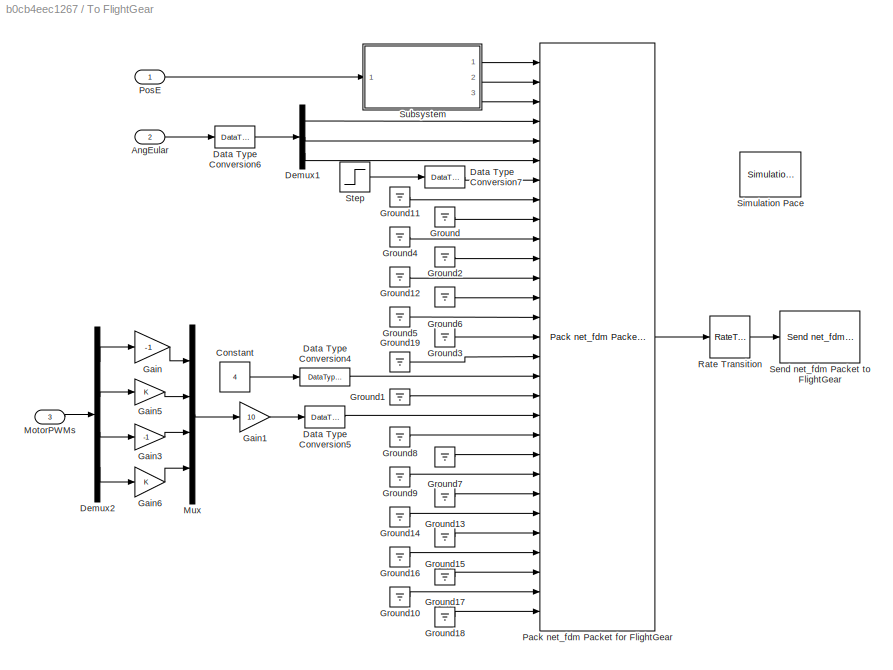
BLOCK [SubSystem] To FlightGear
  Ports = [3]
  RequestExecContextInheritance = off
  Variant = off
BLOCK [Inport] To FlightGear/AngEular
  IconDisplay = Port number
  Port = 2
BLOCK [Constant] To FlightGear/Constant
  Value = 4
BLOCK [DataTypeConversion] To FlightGear/Data Type Conversion4
  OutDataTypeStr = uint32
  RndMeth = Floor
  SaturateOnIntegerOverflow = off
BLOCK [DataTypeConversion] To FlightGear/Data Type Conversion5
  OutDataTypeStr = single
  RndMeth = Floor
  SaturateOnIntegerOverflow = off
BLOCK [DataTypeConversion] To FlightGear/Data Type Conversion6
  OutDataTypeStr = single
  RndMeth = Floor
  SaturateOnIntegerOverflow = off
BLOCK [DataTypeConversion] To FlightGear/Data Type Conversion7
  OutDataTypeStr = single
  RndMeth = Floor
  SaturateOnIntegerOverflow = off
BLOCK [Demux] To FlightGear/Demux1
  DisplayOption = bar
  Outputs = 3
  Ports = [1, 3]
BLOCK [Demux] To FlightGear/Demux2
  DisplayOption = bar
  Ports = [1, 4]
BLOCK [Gain] To FlightGear/Gain
  Gain = -1
  OutDataTypeStr = Inherit: Inherit via internal rule
  ParamDataTypeStr = Inherit: Inherit via internal rule
  SaturateOnIntegerOverflow = off
BLOCK [Gain] To FlightGear/Gain1
  Gain = 10
  OutDataTypeStr = Inherit: Inherit via internal rule
  ParamDataTypeStr = Inherit: Inherit via internal rule
  SaturateOnIntegerOverflow = off
BLOCK [Gain] To FlightGear/Gain3
  Gain = -1
  OutDataTypeStr = Inherit: Inherit via internal rule
  ParamDataTypeStr = Inherit: Inherit via internal rule
  SaturateOnIntegerOverflow = off
BLOCK [Gain] To FlightGear/Gain5
  OutDataTypeStr = Inherit: Inherit via internal rule
  ParamDataTypeStr = Inherit: Inherit via internal rule
  SaturateOnIntegerOverflow = off
BLOCK [Gain] To FlightGear/Gain6
  OutDataTypeStr = Inherit: Inherit via internal rule
  ParamDataTypeStr = Inherit: Inherit via internal rule
  SaturateOnIntegerOverflow = off
BLOCK [Ground] To FlightGear/Ground
BLOCK [Ground] To FlightGear/Ground1
BLOCK [Ground] To FlightGear/Ground10
BLOCK [Ground] To FlightGear/Ground11
BLOCK [Ground] To FlightGear/Ground12
BLOCK [Ground] To FlightGear/Ground13
BLOCK [Ground] To FlightGear/Ground14
BLOCK [Ground] To FlightGear/Ground15
BLOCK [Ground] To FlightGear/Ground16
BLOCK [Ground] To FlightGear/Ground17
BLOCK [Ground] To FlightGear/Ground18
BLOCK [Ground] To FlightGear/Ground19
BLOCK [Ground] To FlightGear/Ground2
BLOCK [Ground] To FlightGear/Ground3
BLOCK [Ground] To FlightGear/Ground4
BLOCK [Ground] To FlightGear/Ground5
BLOCK [Ground] To FlightGear/Ground6
BLOCK [Ground] To FlightGear/Ground7
BLOCK [Ground] To FlightGear/Ground8
BLOCK [Ground] To FlightGear/Ground9
BLOCK [Inport] To FlightGear/MotorPWMs
  IconDisplay = Port number
  Port = 3
BLOCK [Mux] To FlightGear/Mux
  DisplayOption = bar
  Ports = [4, 1]
BLOCK [Reference] To FlightGear/Pack net_fdm Packet for FlightGear  REF=aerolibfltsims/Pack
net_fdm Packet
for FlightGear
  AttributesFormatString = Version Selected: %<FlightGearVersion>
  Ports = [29, 1]
  SourceBlock = aerolibfltsims/Pack\nnet_fdm Packet\nfor FlightGear
  SourceType = FlightGearPackNetFdm
BLOCK [Inport] To FlightGear/PosE
  IconDisplay = Port number
BLOCK [RateTransition] To FlightGear/Rate Transition
BLOCK [Reference] To FlightGear/Send net_fdm Packet to FlightGear  REF=aerolibfltsims/Send
net_fdm Packet
to FlightGear
  Ports = [1]
  SourceBlock = aerolibfltsims/Send\nnet_fdm Packet\nto FlightGear
  SourceType = FlightGearSendNetFdm
BLOCK [Reference] To FlightGear/Simulation Pace  REF=aerolibanimutils/Simulation Pace
  AttributesFormatString = %<SimulationPace> sec/sec
  Ports = []
  SourceBlock = aerolibanimutils/Simulation Pace
  SourceType = Simulation Pace
BLOCK [Step] To FlightGear/Step
  SampleTime = 0
  Time = 5
BLOCK [SubSystem] To FlightGear/Subsystem
  Ports = [1, 3]
  RequestExecContextInheritance = off
  Variant = off
BLOCK [Constant] To FlightGear/Subsystem/Constant1
  Value = 5
  VectorParams1D = off
BLOCK [Constant] To FlightGear/Subsystem/Constant2
  Value = -2.1361
  VectorParams1D = off
BLOCK [Constant] To FlightGear/Subsystem/Constant3
  Value = 0.65673
  VectorParams1D = off
BLOCK [Demux] To FlightGear/Subsystem/Demux
  DisplayOption = bar
  Outputs = 3
  Ports = [1, 3]
BLOCK [Gain] To FlightGear/Subsystem/Gain1
  Gain = 10/earthRadius
  OutDataTypeStr = Inherit: Inherit via internal rule
  ParamDataTypeStr = Inherit: Inherit via internal rule
  SaturateOnIntegerOverflow = off
BLOCK [Gain] To FlightGear/Subsystem/Gain2
  Gain = 10/earthRadius
  OutDataTypeStr = Inherit: Inherit via internal rule
  ParamDataTypeStr = Inherit: Inherit via internal rule
  SaturateOnIntegerOverflow = off
BLOCK [Gain] To FlightGear/Subsystem/Gain4
  OutDataTypeStr = Inherit: Inherit via internal rule
  ParamDataTypeStr = Inherit: Inherit via internal rule
  SaturateOnIntegerOverflow = off
BLOCK [Gain] To FlightGear/Subsystem/Gain8
  Gain = -10
  OutDataTypeStr = Inherit: Inherit via internal rule
  ParamDataTypeStr = Inherit: Inherit via internal rule
  SaturateOnIntegerOverflow = off
BLOCK [Inport] To FlightGear/Subsystem/In1
  IconDisplay = Port number
BLOCK [Sum] To FlightGear/Subsystem/Sum10
  IconShape = round
  InputSameDT = off
  Inputs = |++
  OutDataTypeStr = Inherit: Inherit via internal rule
  Ports = [2, 1]
  SaturateOnIntegerOverflow = off
BLOCK [Sum] To FlightGear/Subsystem/Sum8
  IconShape = round
  InputSameDT = off
  Inputs = |++
  OutDataTypeStr = Inherit: Inherit via internal rule
  Ports = [2, 1]
  SaturateOnIntegerOverflow = off
BLOCK [Sum] To FlightGear/Subsystem/Sum9
  IconShape = round
  InputSameDT = off
  Inputs = |++
  OutDataTypeStr = Inherit: Inherit via internal rule
  Ports = [2, 1]
  SaturateOnIntegerOverflow = off
BLOCK [Outport] To FlightGear/Subsystem/h
  IconDisplay = Port number
  Port = 3
BLOCK [Outport] To FlightGear/Subsystem/l 
  IconDisplay = Port number
BLOCK [Outport] To FlightGear/Subsystem/u
  IconDisplay = Port number
  Port = 2
BLOCK [SubSystem] add_bias
  Ports = [1, 1]
  RequestExecContextInheritance = off
  Variant = off
BLOCK [Constant] add_bias/Constant
  Value = 0.03
BLOCK [Constant] add_bias/Constant1
  Value = 0.03
BLOCK [Demux] add_bias/Demux4
  DisplayOption = bar
  Outputs = 3
  Ports = [1, 3]
BLOCK [Mux] add_bias/Mux
  DisplayOption = bar
  Inputs = 3
  Ports = [3, 1]
BLOCK [Sum] add_bias/Sum
  IconShape = round
  InputSameDT = off
  Inputs = |++
  OutDataTypeStr = Inherit: Inherit via internal rule
  Ports = [2, 1]
  SaturateOnIntegerOverflow = off
BLOCK [Sum] add_bias/Sum1
  IconShape = round
  InputSameDT = off
  Inputs = |++
  OutDataTypeStr = Inherit: Inherit via internal rule
  Ports = [2, 1]
  SaturateOnIntegerOverflow = off
BLOCK [Inport] add_bias/eulerAngle
  IconDisplay = Port number
BLOCK [Outport] add_bias/eulerAngle 
  IconDisplay = Port number
BLOCK [SubSystem] scope
  Ports = [2]
  RequestExecContextInheritance = off
  Variant = off
BLOCK [Demux] scope/Demux1
  DisplayOption = bar
  Outputs = 3
  Ports = [1, 3]
BLOCK [Demux] scope/Demux4
  DisplayOption = bar
  Outputs = 3
  Ports = [1, 3]
BLOCK [Inport] scope/EulerAngle
  IconDisplay = Port number
  Port = 2
BLOCK [Inport] scope/Pos
  IconDisplay = Port number
BLOCK [Terminator] scope/Terminator
BLOCK [Reference] scope/XY  REF=simulink/Sinks/XY Graph
  Ports = [2]
  SourceBlock = simulink/Sinks/XY Graph
  SourceType = XY scope.
BLOCK [Scope] scope/rp
  NumInputPorts = 2
  Ports = [2]
  ScopeSpecificationString = Simulink.scopes.TimeScopeBlockCfg('CurrentConfiguration', extmgr.ConfigurationSet(extmgr.Configuration('Core','General UI',true,'FigureColor',[1 1 1]),extmgr.Configuration('Core','Source UI',true),extmgr.Configuration('Sources','WiredSimulink',true,'DataLoggingVariableName','ScopeData2'),extmgr.Configuration('Visuals','Time Domain',true,'SerializedDisplays',{struct('MinYLimReal','-0.00381','MaxYLi...<+2252ch>
BLOCK [Scope] scope/z
  NumInputPorts = 1
  Ports = [1]
  ScopeSpecificationString = Simulink.scopes.TimeScopeBlockCfg('CurrentConfiguration', extmgr.ConfigurationSet(extmgr.Configuration('Core','General UI',true,'FigureColor',[1 1 1]),extmgr.Configuration('Core','Source UI',true),extmgr.Configuration('Sources','WiredSimulink',true,'DataLoggingVariableName','ScopeData1'),extmgr.Configuration('Visuals','Time Domain',true,'SerializedDisplays',{struct('MinYLimReal','-100.0701','MaxYL...<+2252ch>
ANNOTATION Quadcopter Dynamics: 输入是1000~2000的PWM信号，需要将其归一化到0~1
ANNOTATION Quadcopter Dynamics/刚体模型/计算旋转矩阵和欧拉角: 四元数归一化
ANNOTATION Quadcopter Dynamics/动力单元模型: 一号电机 饱和 油门-->电机转速
ANNOTATION Quadcopter Dynamics/动力单元模型: 电机动态 公式(6.27)：w=1/(Ts+1)*wb
LINE           :1 -> Control System:4
LINE    1:1 -> Control System:1
LINE    2:1 -> Control System:2
LINE    3:1 -> Control System:3
LINE  :1 -> Control System:5
LINE Control System/Bus Creator:1 -> Control System/PWM:1
LINE Control System/Constant1:1 -> Control System/Bus Creator:2
LINE Control System/Constant:1 -> Control System/Subsystem:1
LINE Control System/Conversion10:1 -> Control System/Subsystem:16
LINE Control System/Conversion11:1 -> Control System/Subsystem:17
LINE Control System/Conversion12:1 -> Control System/Subsystem:18
LINE Control System/Conversion13:1 -> Control System/Subsystem:19
LINE Control System/Conversion14:1 -> Control System/Subsystem:20
LINE Control System/Conversion15:1 -> Control System/Subsystem:21
LINE Control System/Conversion16:1 -> Control System/Subsystem:22
LINE Control System/Conversion17:1 -> Control System/Subsystem:23
LINE Control System/Conversion1:1 -> Control System/InputConditioning1:2
LINE Control System/Conversion2:1 -> Control System/InputConditioning1:1
NET Control System/Conversion3:1 -> Control System/InputConditioning1:3, Control System/MATLAB Function1:1
LINE Control System/Conversion4:1 -> Control System/InputConditioning1:4
LINE Control System/Conversion5:1 -> Control System/Subsystem:12
LINE Control System/Conversion6:1 -> Control System/LED :1
LINE Control System/Conversion7:1 -> Control System/Subsystem:13
LINE Control System/Conversion8:1 -> Control System/Subsystem:14
LINE Control System/Conversion9:1 -> Control System/Subsystem:15
LINE Control System/From:1 -> Control System/Subsystem:24
LINE Control System/InputConditioning1/Constant:1 -> Control System/InputConditioning1/Sum:2
LINE Control System/InputConditioning1/Gain1:1 -> Control System/InputConditioning1/deg2rad1:1
LINE Control System/InputConditioning1/Gain2:1 -> Control System/InputConditioning1/deg2rad3:1
LINE Control System/InputConditioning1/Gain3:1 -> Control System/InputConditioning1/deg2rad2:1
LINE Control System/InputConditioning1/Gain:1 -> Control System/InputConditioning1/f1:1
LINE Control System/InputConditioning1/Saturation10:1 -> Control System/InputConditioning1/Thrust:1
LINE Control System/InputConditioning1/Saturation7:1 -> Control System/InputConditioning1/Gain2:1
LINE Control System/InputConditioning1/Saturation8:1 -> Control System/InputConditioning1/Gain3:1
LINE Control System/InputConditioning1/Saturation9:1 -> Control System/InputConditioning1/Gain1:1
LINE Control System/InputConditioning1/Sum:1 -> Control System/InputConditioning1/Gain:1
LINE Control System/InputConditioning1/deadzone0:1 -> Control System/InputConditioning1/Saturation9:1
LINE Control System/InputConditioning1/deadzone1:1 -> Control System/InputConditioning1/Saturation8:1
LINE Control System/InputConditioning1/deadzone2:1 -> Control System/InputConditioning1/Sum:1
LINE Control System/InputConditioning1/deadzone3:1 -> Control System/InputConditioning1/Saturation7:1
LINE Control System/InputConditioning1/deg2rad1:1 -> Control System/InputConditioning1/Roll:1
LINE Control System/InputConditioning1/deg2rad2:1 -> Control System/InputConditioning1/Pitch:1
LINE Control System/InputConditioning1/deg2rad3:1 -> Control System/InputConditioning1/Yaw:1
LINE Control System/InputConditioning1/f1:1 -> Control System/InputConditioning1/Saturation10:1
LINE Control System/InputConditioning1/pitch:1 -> Control System/InputConditioning1/deadzone1:1
LINE Control System/InputConditioning1/roll:1 -> Control System/InputConditioning1/deadzone0:1
LINE Control System/InputConditioning1/thr_hover :1 -> Control System/InputConditioning1/f1:2
LINE Control System/InputConditioning1/thrust:1 -> Control System/InputConditioning1/deadzone2:1
LINE Control System/InputConditioning1/yaw:1 -> Control System/InputConditioning1/deadzone3:1
LINE Control System/InputConditioning1:1 -> Control System/Subsystem:2
LINE Control System/InputConditioning1:2 -> Control System/Subsystem:3
LINE Control System/InputConditioning1:3 -> Control System/Subsystem:4
LINE Control System/InputConditioning1:4 -> Control System/Subsystem:5
LINE Control System/LED /Compare To Constant3:1 -> Control System/LED /Out1:1
LINE Control System/LED /In1:1 -> Control System/LED /Compare To Constant3:1
LINE Control System/LED :1 -> Control System/LED:1
LINE Control System/MATLAB Function1:1 -> Control System/Goto1:1
LINE Control System/Subsystem/AttitudeControl/Demux12:1 -> Control System/Subsystem/AttitudeControl/Sum18:2
LINE Control System/Subsystem/AttitudeControl/Demux12:2 -> Control System/Subsystem/AttitudeControl/Sum19:2
LINE Control System/Subsystem/AttitudeControl/Demux16:1 -> Control System/Subsystem/AttitudeControl/Sum21:2
LINE Control System/Subsystem/AttitudeControl/Demux16:2 -> Control System/Subsystem/AttitudeControl/Sum22:2
NET Control System/Subsystem/AttitudeControl/Demux:1 -> Control System/Subsystem/AttitudeControl/pitch_rate:2, Control System/Subsystem/AttitudeControl/roll_rate:2
LINE Control System/Subsystem/AttitudeControl/Demux:2 -> Control System/Subsystem/AttitudeControl/yaw_rate:2
LINE Control System/Subsystem/AttitudeControl/Mux22:1 -> Control System/Subsystem/AttitudeControl/Demux16:1
LINE Control System/Subsystem/AttitudeControl/Saturation1:1 -> Control System/Subsystem/AttitudeControl/Pitch:1
LINE Control System/Subsystem/AttitudeControl/Saturation2:1 -> Control System/Subsystem/AttitudeControl/Yaw:1
LINE Control System/Subsystem/AttitudeControl/Saturation3:1 -> Control System/Subsystem/AttitudeControl/Mux22:2
LINE Control System/Subsystem/AttitudeControl/Saturation5:1 -> Control System/Subsystem/AttitudeControl/Mux22:1
LINE Control System/Subsystem/AttitudeControl/Saturation:1 -> Control System/Subsystem/AttitudeControl/Roll:1
LINE Control System/Subsystem/AttitudeControl/Sum18:1 -> Control System/Subsystem/AttitudeControl/roll_angle :1
LINE Control System/Subsystem/AttitudeControl/Sum19:1 -> Control System/Subsystem/AttitudeControl/pitch_angle :1
LINE Control System/Subsystem/AttitudeControl/Sum1:1 -> Control System/Subsystem/AttitudeControl/yaw_rate:1
LINE Control System/Subsystem/AttitudeControl/Sum21:1 -> Control System/Subsystem/AttitudeControl/roll_rate:1
LINE Control System/Subsystem/AttitudeControl/Sum22:1 -> Control System/Subsystem/AttitudeControl/pitch_rate:1
LINE Control System/Subsystem/AttitudeControl/p:1 -> Control System/Subsystem/AttitudeControl/Sum21:1
LINE Control System/Subsystem/AttitudeControl/phi:1 -> Control System/Subsystem/AttitudeControl/Sum18:1
LINE Control System/Subsystem/AttitudeControl/pitch_angle /Gain:1 -> Control System/Subsystem/AttitudeControl/pitch_angle /y:1
LINE Control System/Subsystem/AttitudeControl/pitch_angle /x:1 -> Control System/Subsystem/AttitudeControl/pitch_angle /Gain:1
LINE Control System/Subsystem/AttitudeControl/pitch_angle :1 -> Control System/Subsystem/AttitudeControl/Saturation3:1
LINE Control System/Subsystem/AttitudeControl/pitch_rate/Derivative Gain:1 -> Control System/Subsystem/AttitudeControl/pitch_rate/Discrete Derivative:1
LINE Control System/Subsystem/AttitudeControl/pitch_rate/Discrete Derivative:1 -> Control System/Subsystem/AttitudeControl/pitch_rate/Sum:3
LINE Control System/Subsystem/AttitudeControl/pitch_rate/Discrete-Time Integrator:1 -> Control System/Subsystem/AttitudeControl/pitch_rate/Sum:2
LINE Control System/Subsystem/AttitudeControl/pitch_rate/Gain:1 -> Control System/Subsystem/AttitudeControl/pitch_rate/Sum:1
LINE Control System/Subsystem/AttitudeControl/pitch_rate/Integral Gain:1 -> Control System/Subsystem/AttitudeControl/pitch_rate/Discrete-Time Integrator:1
LINE Control System/Subsystem/AttitudeControl/pitch_rate/Sum:1 -> Control System/Subsystem/AttitudeControl/pitch_rate/y:1
LINE Control System/Subsystem/AttitudeControl/pitch_rate/reset_i:1 -> Control System/Subsystem/AttitudeControl/pitch_rate/Discrete-Time Integrator:2
NET Control System/Subsystem/AttitudeControl/pitch_rate/x:1 -> Control System/Subsystem/AttitudeControl/pitch_rate/Derivative Gain:1, Control System/Subsystem/AttitudeControl/pitch_rate/Gain:1, Control System/Subsystem/AttitudeControl/pitch_rate/Integral Gain:1
LINE Control System/Subsystem/AttitudeControl/pitch_rate:1 -> Control System/Subsystem/AttitudeControl/Saturation1:1
LINE Control System/Subsystem/AttitudeControl/q:1 -> Control System/Subsystem/AttitudeControl/Sum22:1
LINE Control System/Subsystem/AttitudeControl/r:1 -> Control System/Subsystem/AttitudeControl/Sum1:1
LINE Control System/Subsystem/AttitudeControl/reset_i:1 -> Control System/Subsystem/AttitudeControl/Demux:1
LINE Control System/Subsystem/AttitudeControl/roll_angle /Gain:1 -> Control System/Subsystem/AttitudeControl/roll_angle /y:1
LINE Control System/Subsystem/AttitudeControl/roll_angle /x:1 -> Control System/Subsystem/AttitudeControl/roll_angle /Gain:1
LINE Control System/Subsystem/AttitudeControl/roll_angle :1 -> Control System/Subsystem/AttitudeControl/Saturation5:1
LINE Control System/Subsystem/AttitudeControl/roll_pitch:1 -> Control System/Subsystem/AttitudeControl/Demux12:1
LINE Control System/Subsystem/AttitudeControl/roll_rate/Derivative Gain:1 -> Control System/Subsystem/AttitudeControl/roll_rate/Discrete Derivative:1
LINE Control System/Subsystem/AttitudeControl/roll_rate/Discrete Derivative:1 -> Control System/Subsystem/AttitudeControl/roll_rate/Sum:3
LINE Control System/Subsystem/AttitudeControl/roll_rate/Discrete-Time Integrator:1 -> Control System/Subsystem/AttitudeControl/roll_rate/Sum:2
LINE Control System/Subsystem/AttitudeControl/roll_rate/Gain:1 -> Control System/Subsystem/AttitudeControl/roll_rate/Sum:1
LINE Control System/Subsystem/AttitudeControl/roll_rate/Integral Gain:1 -> Control System/Subsystem/AttitudeControl/roll_rate/Discrete-Time Integrator:1
LINE Control System/Subsystem/AttitudeControl/roll_rate/Sum:1 -> Control System/Subsystem/AttitudeControl/roll_rate/y:1
LINE Control System/Subsystem/AttitudeControl/roll_rate/reset_i:1 -> Control System/Subsystem/AttitudeControl/roll_rate/Discrete-Time Integrator:2
NET Control System/Subsystem/AttitudeControl/roll_rate/x:1 -> Control System/Subsystem/AttitudeControl/roll_rate/Derivative Gain:1, Control System/Subsystem/AttitudeControl/roll_rate/Gain:1, Control System/Subsystem/AttitudeControl/roll_rate/Integral Gain:1
LINE Control System/Subsystem/AttitudeControl/roll_rate:1 -> Control System/Subsystem/AttitudeControl/Saturation:1
LINE Control System/Subsystem/AttitudeControl/theta:1 -> Control System/Subsystem/AttitudeControl/Sum19:1
LINE Control System/Subsystem/AttitudeControl/yaw:1 -> Control System/Subsystem/AttitudeControl/Sum1:2
LINE Control System/Subsystem/AttitudeControl/yaw_rate/Derivative Gain:1 -> Control System/Subsystem/AttitudeControl/yaw_rate/Discrete Derivative:1
LINE Control System/Subsystem/AttitudeControl/yaw_rate/Discrete Derivative:1 -> Control System/Subsystem/AttitudeControl/yaw_rate/Sum:3
LINE Control System/Subsystem/AttitudeControl/yaw_rate/Discrete-Time Integrator:1 -> Control System/Subsystem/AttitudeControl/yaw_rate/Sum:2
LINE Control System/Subsystem/AttitudeControl/yaw_rate/Gain:1 -> Control System/Subsystem/AttitudeControl/yaw_rate/Sum:1
LINE Control System/Subsystem/AttitudeControl/yaw_rate/Integral Gain:1 -> Control System/Subsystem/AttitudeControl/yaw_rate/Discrete-Time Integrator:1
LINE Control System/Subsystem/AttitudeControl/yaw_rate/Sum:1 -> Control System/Subsystem/AttitudeControl/yaw_rate/y:1
LINE Control System/Subsystem/AttitudeControl/yaw_rate/reset_i:1 -> Control System/Subsystem/AttitudeControl/yaw_rate/Discrete-Time Integrator:2
NET Control System/Subsystem/AttitudeControl/yaw_rate/x:1 -> Control System/Subsystem/AttitudeControl/yaw_rate/Derivative Gain:1, Control System/Subsystem/AttitudeControl/yaw_rate/Gain:1, Control System/Subsystem/AttitudeControl/yaw_rate/Integral Gain:1
LINE Control System/Subsystem/AttitudeControl/yaw_rate:1 -> Control System/Subsystem/AttitudeControl/Saturation2:1
LINE Control System/Subsystem/AttitudeControl:1 -> Control System/Subsystem/pwm_out2:1
LINE Control System/Subsystem/AttitudeControl:2 -> Control System/Subsystem/pwm_out2:2
LINE Control System/Subsystem/AttitudeControl:3 -> Control System/Subsystem/pwm_out2:3
LINE Control System/Subsystem/Bus Creator1:1 -> Control System/Subsystem/Switch1:3
LINE Control System/Subsystem/Bus Creator:1 -> Control System/Subsystem/Switch1:1
LINE Control System/Subsystem/Demux:1 -> Control System/Subsystem/Mux1:1
LINE Control System/Subsystem/Demux:2 -> Control System/Subsystem/Mux1:2
LINE Control System/Subsystem/Demux:3 -> Control System/Subsystem/Mux2:1
LINE Control System/Subsystem/Demux:4 -> Control System/Subsystem/Mux2:2
LINE Control System/Subsystem/From1:1 -> Control System/Subsystem/Switch2:2
LINE Control System/Subsystem/From:1 -> Control System/Subsystem/Switch1:2
LINE Control System/Subsystem/Mux12:1 -> Control System/Subsystem/Output_Limits1:1
LINE Control System/Subsystem/Mux1:1 -> Control System/Subsystem/AttitudeControl:9
LINE Control System/Subsystem/Mux2:1 -> Control System/Subsystem/position_control:14
LINE Control System/Subsystem/Output_Limits1:1 -> Control System/Subsystem/PWM:1
LINE Control System/Subsystem/Switch1:1 -> Control System/Subsystem/AttitudeControl:4
LINE Control System/Subsystem/Switch2:1 -> Control System/Subsystem/pwm_out2:4
LINE Control System/Subsystem/mode:1 -> Control System/Subsystem/Goto:1
LINE Control System/Subsystem/p:1 -> Control System/Subsystem/AttitudeControl:6
LINE Control System/Subsystem/pitch:1 -> Control System/Subsystem/AttitudeControl:2
LINE Control System/Subsystem/pitch_d:1 -> Control System/Subsystem/Bus Creator1:2
LINE Control System/Subsystem/position_control/Constant:1 -> Control System/Subsystem/position_control/Sum6:2
NET Control System/Subsystem/position_control/Demux:1 -> Control System/Subsystem/position_control/vx :2, Control System/Subsystem/position_control/vy :2
LINE Control System/Subsystem/position_control/Demux:2 -> Control System/Subsystem/position_control/vz :2
LINE Control System/Subsystem/position_control/Gain:1 -> Control System/Subsystem/position_control/Saturation:1
LINE Control System/Subsystem/position_control/MATLAB Function:1 -> Control System/Subsystem/position_control/Saturation1:1
LINE Control System/Subsystem/position_control/MATLAB Function:2 -> Control System/Subsystem/position_control/Saturation2:1
LINE Control System/Subsystem/position_control/Saturation1:1 -> Control System/Subsystem/position_control/phi:1
LINE Control System/Subsystem/position_control/Saturation2:1 -> Control System/Subsystem/position_control/theta:1
LINE Control System/Subsystem/position_control/Saturation:1 -> Control System/Subsystem/position_control/thr:1
LINE Control System/Subsystem/position_control/Sum1:1 -> Control System/Subsystem/position_control/px:1
LINE Control System/Subsystem/position_control/Sum2:1 -> Control System/Subsystem/position_control/vy :1
LINE Control System/Subsystem/position_control/Sum3:1 -> Control System/Subsystem/position_control/py:1
LINE Control System/Subsystem/position_control/Sum4:1 -> Control System/Subsystem/position_control/pz:1
LINE Control System/Subsystem/position_control/Sum6:1 -> Control System/Subsystem/position_control/Gain:1
LINE Control System/Subsystem/position_control/Sum7:1 -> Control System/Subsystem/position_control/vx :1
LINE Control System/Subsystem/position_control/Sum:1 -> Control System/Subsystem/position_control/vz :1
LINE Control System/Subsystem/position_control/psi:1 -> Control System/Subsystem/position_control/MATLAB Function:3
LINE Control System/Subsystem/position_control/px:1 -> Control System/Subsystem/position_control/Sum7:2
LINE Control System/Subsystem/position_control/py:1 -> Control System/Subsystem/position_control/Sum2:2
LINE Control System/Subsystem/position_control/pz:1 -> Control System/Subsystem/position_control/Sum:2
LINE Control System/Subsystem/position_control/reset_i:1 -> Control System/Subsystem/position_control/Demux:1
LINE Control System/Subsystem/position_control/vx /Derivative Gain:1 -> Control System/Subsystem/position_control/vx /Discrete Derivative:1
LINE Control System/Subsystem/position_control/vx /Discrete Derivative:1 -> Control System/Subsystem/position_control/vx /Sum:3
LINE Control System/Subsystem/position_control/vx /Discrete-Time Integrator:1 -> Control System/Subsystem/position_control/vx /Sum:2
LINE Control System/Subsystem/position_control/vx /Gain:1 -> Control System/Subsystem/position_control/vx /Sum:1
LINE Control System/Subsystem/position_control/vx /Integral Gain:1 -> Control System/Subsystem/position_control/vx /Discrete-Time Integrator:1
LINE Control System/Subsystem/position_control/vx /Sum:1 -> Control System/Subsystem/position_control/vx /y:1
LINE Control System/Subsystem/position_control/vx /reset_i:1 -> Control System/Subsystem/position_control/vx /Discrete-Time Integrator:2
NET Control System/Subsystem/position_control/vx /x:1 -> Control System/Subsystem/position_control/vx /Derivative Gain:1, Control System/Subsystem/position_control/vx /Gain:1, Control System/Subsystem/position_control/vx /Integral Gain:1
LINE Control System/Subsystem/position_control/vx :1 -> Control System/Subsystem/position_control/MATLAB Function:1
LINE Control System/Subsystem/position_control/vx:1 -> Control System/Subsystem/position_control/Sum7:3
LINE Control System/Subsystem/position_control/vx_desired:1 -> Control System/Subsystem/position_control/Sum7:1
LINE Control System/Subsystem/position_control/vy /Derivative Gain:1 -> Control System/Subsystem/position_control/vy /Discrete Derivative:1
LINE Control System/Subsystem/position_control/vy /Discrete Derivative:1 -> Control System/Subsystem/position_control/vy /Sum:3
LINE Control System/Subsystem/position_control/vy /Discrete-Time Integrator:1 -> Control System/Subsystem/position_control/vy /Sum:2
LINE Control System/Subsystem/position_control/vy /Gain:1 -> Control System/Subsystem/position_control/vy /Sum:1
LINE Control System/Subsystem/position_control/vy /Integral Gain:1 -> Control System/Subsystem/position_control/vy /Discrete-Time Integrator:1
LINE Control System/Subsystem/position_control/vy /Sum:1 -> Control System/Subsystem/position_control/vy /y:1
LINE Control System/Subsystem/position_control/vy /reset_i:1 -> Control System/Subsystem/position_control/vy /Discrete-Time Integrator:2
NET Control System/Subsystem/position_control/vy /x:1 -> Control System/Subsystem/position_control/vy /Derivative Gain:1, Control System/Subsystem/position_control/vy /Gain:1, Control System/Subsystem/position_control/vy /Integral Gain:1
LINE Control System/Subsystem/position_control/vy :1 -> Control System/Subsystem/position_control/MATLAB Function:2
LINE Control System/Subsystem/position_control/vy:1 -> Control System/Subsystem/position_control/Sum2:3
LINE Control System/Subsystem/position_control/vy_desired:1 -> Control System/Subsystem/position_control/Sum2:1
LINE Control System/Subsystem/position_control/vz /Derivative Gain:1 -> Control System/Subsystem/position_control/vz /Discrete Derivative:1
LINE Control System/Subsystem/position_control/vz /Discrete Derivative:1 -> Control System/Subsystem/position_control/vz /Sum:3
LINE Control System/Subsystem/position_control/vz /Discrete-Time Integrator:1 -> Control System/Subsystem/position_control/vz /Sum:2
LINE Control System/Subsystem/position_control/vz /Gain:1 -> Control System/Subsystem/position_control/vz /Sum:1
LINE Control System/Subsystem/position_control/vz /Integral Gain:1 -> Control System/Subsystem/position_control/vz /Discrete-Time Integrator:1
LINE Control System/Subsystem/position_control/vz /Sum:1 -> Control System/Subsystem/position_control/vz /y:1
LINE Control System/Subsystem/position_control/vz /reset_i:1 -> Control System/Subsystem/position_control/vz /Discrete-Time Integrator:2
NET Control System/Subsystem/position_control/vz /x:1 -> Control System/Subsystem/position_control/vz /Derivative Gain:1, Control System/Subsystem/position_control/vz /Gain:1, Control System/Subsystem/position_control/vz /Integral Gain:1
LINE Control System/Subsystem/position_control/vz :1 -> Control System/Subsystem/position_control/Sum6:1
LINE Control System/Subsystem/position_control/vz:1 -> Control System/Subsystem/position_control/Sum:3
LINE Control System/Subsystem/position_control/vz_desired:1 -> Control System/Subsystem/position_control/Sum:1
LINE Control System/Subsystem/position_control/x:1 -> Control System/Subsystem/position_control/Sum1:2
LINE Control System/Subsystem/position_control/x_desired:1 -> Control System/Subsystem/position_control/Sum1:1
LINE Control System/Subsystem/position_control/y:1 -> Control System/Subsystem/position_control/Sum3:2
LINE Control System/Subsystem/position_control/y_desired:1 -> Control System/Subsystem/position_control/Sum3:1
LINE Control System/Subsystem/position_control/z:1 -> Control System/Subsystem/position_control/Sum4:2
LINE Control System/Subsystem/position_control/z_desired:1 -> Control System/Subsystem/position_control/Sum4:1
LINE Control System/Subsystem/position_control:1 -> Control System/Subsystem/Bus Creator:1
LINE Control System/Subsystem/position_control:2 -> Control System/Subsystem/Bus Creator:2
LINE Control System/Subsystem/position_control:3 -> Control System/Subsystem/Switch2:1
NET Control System/Subsystem/psi:1 -> Control System/Subsystem/AttitudeControl:3, Control System/Subsystem/position_control:13
LINE Control System/Subsystem/pwm_out2:1 -> Control System/Subsystem/Mux12:1
LINE Control System/Subsystem/pwm_out2:2 -> Control System/Subsystem/Mux12:2
LINE Control System/Subsystem/pwm_out2:3 -> Control System/Subsystem/Mux12:3
LINE Control System/Subsystem/pwm_out2:4 -> Control System/Subsystem/Mux12:4
LINE Control System/Subsystem/q:1 -> Control System/Subsystem/AttitudeControl:7
LINE Control System/Subsystem/r:1 -> Control System/Subsystem/AttitudeControl:8
LINE Control System/Subsystem/reset_i:1 -> Control System/Subsystem/Demux:1
LINE Control System/Subsystem/roll:1 -> Control System/Subsystem/AttitudeControl:1
LINE Control System/Subsystem/roll_d:1 -> Control System/Subsystem/Bus Creator1:1
LINE Control System/Subsystem/thrust_d:1 -> Control System/Subsystem/Switch2:3
LINE Control System/Subsystem/vx:1 -> Control System/Subsystem/position_control:10
LINE Control System/Subsystem/vx_d:1 -> Control System/Subsystem/position_control:1
LINE Control System/Subsystem/vy:1 -> Control System/Subsystem/position_control:11
LINE Control System/Subsystem/vy_d:1 -> Control System/Subsystem/position_control:2
LINE Control System/Subsystem/vz:1 -> Control System/Subsystem/position_control:12
LINE Control System/Subsystem/vz_d:1 -> Control System/Subsystem/position_control:3
LINE Control System/Subsystem/x:1 -> Control System/Subsystem/position_control:7
LINE Control System/Subsystem/x_d:1 -> Control System/Subsystem/position_control:4
LINE Control System/Subsystem/y:1 -> Control System/Subsystem/position_control:8
LINE Control System/Subsystem/y_d:1 -> Control System/Subsystem/position_control:5
LINE Control System/Subsystem/yaw_d:1 -> Control System/Subsystem/AttitudeControl:5
LINE Control System/Subsystem/z:1 -> Control System/Subsystem/position_control:9
LINE Control System/Subsystem/z_d:1 -> Control System/Subsystem/position_control:6
LINE Control System/Subsystem:1 -> Control System/Bus Creator:1
LINE Control System/ch1:1 -> Control System/Conversion2:1
LINE Control System/ch2:1 -> Control System/Conversion1:1
LINE Control System/ch3:1 -> Control System/Conversion3:1
LINE Control System/ch4:1 -> Control System/Conversion4:1
LINE Control System/ch5:1 -> Control System/Conversion6:1
LINE Control System/p:1 -> Control System/Conversion12:1
LINE Control System/pitch:1 -> Control System/Conversion16:1
LINE Control System/q:1 -> Control System/Conversion13:1
LINE Control System/r:1 -> Control System/Conversion14:1
LINE Control System/roll:1 -> Control System/Conversion15:1
LINE Control System/vx:1 -> Control System/Conversion9:1
LINE Control System/vy:1 -> Control System/Conversion10:1
LINE Control System/vz:1 -> Control System/Conversion11:1
LINE Control System/x:1 -> Control System/Conversion5:1
LINE Control System/y:1 -> Control System/Conversion7:1
LINE Control System/yaw:1 -> Control System/Conversion17:1
LINE Control System/z:1 -> Control System/Conversion8:1
LINE Control System:1 -> Selector:1
LINE Control System:2 -> Terminator:1
LINE Demux1:1 -> Control System:9
LINE Demux1:2 -> Control System:10
LINE Demux1:3 -> Control System:11
LINE Demux2:1 -> Control System:12
LINE Demux2:2 -> Control System:13
LINE Demux2:3 -> Control System:14
LINE Demux3:1 -> Control System:15
LINE Demux3:2 -> Control System:16
LINE Demux3:3 -> Control System:17
LINE Demux:1 -> Control System:6
LINE Demux:2 -> Control System:7
LINE Demux:3 -> Control System:8
LINE Quadcopter Dynamics/Constant2:1 -> Quadcopter Dynamics/Sum:2
LINE Quadcopter Dynamics/Gain1:1 -> Quadcopter Dynamics/Saturation:1
LINE Quadcopter Dynamics/Jrp:1 -> Quadcopter Dynamics/刚体模型:4
LINE Quadcopter Dynamics/Product1:1 -> Quadcopter Dynamics/控制效率模型:2
LINE Quadcopter Dynamics/Saturation:1 -> Quadcopter Dynamics/动力单元模型:1
LINE Quadcopter Dynamics/Sum:1 -> Quadcopter Dynamics/Gain1:1
LINE Quadcopter Dynamics/g:1 -> Quadcopter Dynamics/Product1:2
LINE Quadcopter Dynamics/inPWMs:1 -> Quadcopter Dynamics/Sum:1
LINE Quadcopter Dynamics/mass:1 -> Quadcopter Dynamics/Product1:1
LINE Quadcopter Dynamics/刚体模型/Constant:1 -> Quadcopter Dynamics/刚体模型/p,q,r:2
LINE Quadcopter Dynamics/刚体模型/J:1 -> Quadcopter Dynamics/刚体模型/刚体动力学模型:2
LINE Quadcopter Dynamics/刚体模型/Jrp:1 -> Quadcopter Dynamics/刚体模型/刚体动力学模型:4
LINE Quadcopter Dynamics/刚体模型/MotorRads:1 -> Quadcopter Dynamics/刚体模型/刚体动力学模型:5
LINE Quadcopter Dynamics/刚体模型/f:1 -> Quadcopter Dynamics/刚体模型/刚体运动学模型:1
LINE Quadcopter Dynamics/刚体模型/mass:1 -> Quadcopter Dynamics/刚体模型/刚体运动学模型:2
NET Quadcopter Dynamics/刚体模型/p,q,r:1 -> Quadcopter Dynamics/刚体模型/p,q,r :1, Quadcopter Dynamics/刚体模型/刚体动力学模型:1, Quadcopter Dynamics/刚体模型/刚体运动学模型:3, Quadcopter Dynamics/刚体模型/计算旋转矩阵和欧拉角:1
LINE Quadcopter Dynamics/刚体模型/tao:1 -> Quadcopter Dynamics/刚体模型/刚体动力学模型:3
LINE Quadcopter Dynamics/刚体模型/刚体动力学模型/Constant:1 -> Quadcopter Dynamics/刚体模型/刚体动力学模型/Divide:1
LINE Quadcopter Dynamics/刚体模型/刚体动力学模型/Divide:1 -> Quadcopter Dynamics/刚体模型/刚体动力学模型/Product:1
LINE Quadcopter Dynamics/刚体模型/刚体动力学模型/J*w/J*w:1 -> Quadcopter Dynamics/刚体模型/刚体动力学模型/J*w/J*w :1
LINE Quadcopter Dynamics/刚体模型/刚体动力学模型/J*w/J:1 -> Quadcopter Dynamics/刚体模型/刚体动力学模型/J*w/J*w:1
LINE Quadcopter Dynamics/刚体模型/刚体动力学模型/J*w/p q r:1 -> Quadcopter Dynamics/刚体模型/刚体动力学模型/J*w/J*w:2
LINE Quadcopter Dynamics/刚体模型/刚体动力学模型/J*w:1 -> Quadcopter Dynamics/刚体模型/刚体动力学模型/wx(Jw):2
NET Quadcopter Dynamics/刚体模型/刚体动力学模型/J:1 -> Quadcopter Dynamics/刚体模型/刚体动力学模型/Divide:2, Quadcopter Dynamics/刚体模型/刚体动力学模型/J*w:2
LINE Quadcopter Dynamics/刚体模型/刚体动力学模型/Jrp:1 -> Quadcopter Dynamics/刚体模型/刚体动力学模型/陀螺力矩:1
LINE Quadcopter Dynamics/刚体模型/刚体动力学模型/MotorRads:1 -> Quadcopter Dynamics/刚体模型/刚体动力学模型/陀螺力矩:2
LINE Quadcopter Dynamics/刚体模型/刚体动力学模型/Product:1 -> Quadcopter Dynamics/刚体模型/刚体动力学模型/Reshape:1
LINE Quadcopter Dynamics/刚体模型/刚体动力学模型/Reshape1:1 -> Quadcopter Dynamics/刚体模型/刚体动力学模型/Product:2
LINE Quadcopter Dynamics/刚体模型/刚体动力学模型/Reshape:1 -> Quadcopter Dynamics/刚体模型/刚体动力学模型/pdot,qdot,rdot:1
LINE Quadcopter Dynamics/刚体模型/刚体动力学模型/Sum:1 -> Quadcopter Dynamics/刚体模型/刚体动力学模型/Reshape1:1
NET Quadcopter Dynamics/刚体模型/刚体动力学模型/p q r:1 -> Quadcopter Dynamics/刚体模型/刚体动力学模型/J*w:1, Quadcopter Dynamics/刚体模型/刚体动力学模型/wx(Jw):1, Quadcopter Dynamics/刚体模型/刚体动力学模型/陀螺力矩:3
LINE Quadcopter Dynamics/刚体模型/刚体动力学模型/tao:1 -> Quadcopter Dynamics/刚体模型/刚体动力学模型/Sum:1
LINE Quadcopter Dynamics/刚体模型/刚体动力学模型/wx(Jw):1 -> Quadcopter Dynamics/刚体模型/刚体动力学模型/Sum:3
LINE Quadcopter Dynamics/刚体模型/刚体动力学模型/陀螺力矩:1 -> Quadcopter Dynamics/刚体模型/刚体动力学模型/Sum:2
LINE Quadcopter Dynamics/刚体模型/刚体动力学模型:1 -> Quadcopter Dynamics/刚体模型/p,q,r:1
LINE Quadcopter Dynamics/刚体模型/刚体运动学模型/Constant1:1 -> Quadcopter Dynamics/刚体模型/刚体运动学模型/vb:2
LINE Quadcopter Dynamics/刚体模型/刚体运动学模型/Constant:1 -> Quadcopter Dynamics/刚体模型/刚体运动学模型/xe:2
LINE Quadcopter Dynamics/刚体模型/刚体运动学模型/DCM:1 -> Quadcopter Dynamics/刚体模型/刚体运动学模型/Product1:1
NET Quadcopter Dynamics/刚体模型/刚体运动学模型/Product1:1 -> Quadcopter Dynamics/刚体模型/刚体运动学模型/ve:1, Quadcopter Dynamics/刚体模型/刚体运动学模型/xe:1
LINE Quadcopter Dynamics/刚体模型/刚体运动学模型/Sum:1 -> Quadcopter Dynamics/刚体模型/刚体运动学模型/vb:1
LINE Quadcopter Dynamics/刚体模型/刚体运动学模型/Vbxw:1 -> Quadcopter Dynamics/刚体模型/刚体运动学模型/Sum:2
LINE Quadcopter Dynamics/刚体模型/刚体运动学模型/a=f//m:1 -> Quadcopter Dynamics/刚体模型/刚体运动学模型/Sum:1
LINE Quadcopter Dynamics/刚体模型/刚体运动学模型/f:1 -> Quadcopter Dynamics/刚体模型/刚体运动学模型/a=f//m:1
LINE Quadcopter Dynamics/刚体模型/刚体运动学模型/mass:1 -> Quadcopter Dynamics/刚体模型/刚体运动学模型/a=f//m:2
LINE Quadcopter Dynamics/刚体模型/刚体运动学模型/p q r:1 -> Quadcopter Dynamics/刚体模型/刚体运动学模型/Vbxw:1
NET Quadcopter Dynamics/刚体模型/刚体运动学模型/vb:1 -> Quadcopter Dynamics/刚体模型/刚体运动学模型/Product1:2, Quadcopter Dynamics/刚体模型/刚体运动学模型/Vbxw:2, Quadcopter Dynamics/刚体模型/刚体运动学模型/vb :1
LINE Quadcopter Dynamics/刚体模型/刚体运动学模型/xe:1 -> Quadcopter Dynamics/刚体模型/刚体运动学模型/xe :1
LINE Quadcopter Dynamics/刚体模型/刚体运动学模型:1 -> Quadcopter Dynamics/刚体模型/xe :1
LINE Quadcopter Dynamics/刚体模型/刚体运动学模型:2 -> Quadcopter Dynamics/刚体模型/ve:1
LINE Quadcopter Dynamics/刚体模型/刚体运动学模型:3 -> Quadcopter Dynamics/刚体模型/vb :1
LINE Quadcopter Dynamics/刚体模型/计算旋转矩阵和欧拉角/Constant:1 -> Quadcopter Dynamics/刚体模型/计算旋转矩阵和欧拉角/欧拉角转四元数:1
NET Quadcopter Dynamics/刚体模型/计算旋转矩阵和欧拉角/Divide:1 -> Quadcopter Dynamics/刚体模型/计算旋转矩阵和欧拉角/四元数转旋转矩阵:1, Quadcopter Dynamics/刚体模型/计算旋转矩阵和欧拉角/四元数转欧拉角:1, Quadcopter Dynamics/刚体模型/计算旋转矩阵和欧拉角/基于四元数模型:2
LINE Quadcopter Dynamics/刚体模型/计算旋转矩阵和欧拉角/Dot Product:1 -> Quadcopter Dynamics/刚体模型/计算旋转矩阵和欧拉角/Divide:2
LINE Quadcopter Dynamics/刚体模型/计算旋转矩阵和欧拉角/Reshape:1 -> Quadcopter Dynamics/刚体模型/计算旋转矩阵和欧拉角/q:1
LINE Quadcopter Dynamics/刚体模型/计算旋转矩阵和欧拉角/pqr:1 -> Quadcopter Dynamics/刚体模型/计算旋转矩阵和欧拉角/基于四元数模型:1
NET Quadcopter Dynamics/刚体模型/计算旋转矩阵和欧拉角/q:1 -> Quadcopter Dynamics/刚体模型/计算旋转矩阵和欧拉角/Divide:1, Quadcopter Dynamics/刚体模型/计算旋转矩阵和欧拉角/Dot Product:1, Quadcopter Dynamics/刚体模型/计算旋转矩阵和欧拉角/Dot Product:2
LINE Quadcopter Dynamics/刚体模型/计算旋转矩阵和欧拉角/四元数转旋转矩阵:1 -> Quadcopter Dynamics/刚体模型/计算旋转矩阵和欧拉角/DCM:1
LINE Quadcopter Dynamics/刚体模型/计算旋转矩阵和欧拉角/四元数转欧拉角:1 -> Quadcopter Dynamics/刚体模型/计算旋转矩阵和欧拉角/Euler:1
LINE Quadcopter Dynamics/刚体模型/计算旋转矩阵和欧拉角/基于四元数模型:1 -> Quadcopter Dynamics/刚体模型/计算旋转矩阵和欧拉角/Reshape:1
LINE Quadcopter Dynamics/刚体模型/计算旋转矩阵和欧拉角/欧拉角转四元数:1 -> Quadcopter Dynamics/刚体模型/计算旋转矩阵和欧拉角/q:2
NET Quadcopter Dynamics/刚体模型/计算旋转矩阵和欧拉角:1 -> Quadcopter Dynamics/刚体模型/DCM:1, Quadcopter Dynamics/刚体模型/刚体运动学模型:4
LINE Quadcopter Dynamics/刚体模型/计算旋转矩阵和欧拉角:2 -> Quadcopter Dynamics/刚体模型/Euler:1
LINE Quadcopter Dynamics/刚体模型:1 -> Quadcopter Dynamics/PosE:1
LINE Quadcopter Dynamics/刚体模型:2 -> Quadcopter Dynamics/VelE:1
LINE Quadcopter Dynamics/刚体模型:3 -> Quadcopter Dynamics/AngRateB:1
LINE Quadcopter Dynamics/刚体模型:4 -> Quadcopter Dynamics/控制效率模型:4
LINE Quadcopter Dynamics/刚体模型:5 -> Quadcopter Dynamics/控制效率模型:3
LINE Quadcopter Dynamics/刚体模型:6 -> Quadcopter Dynamics/AngEuler:1
LINE Quadcopter Dynamics/动力单元模型/Demux1:1 -> Quadcopter Dynamics/动力单元模型/Signal_Saturation_1:1
LINE Quadcopter Dynamics/动力单元模型/Demux1:2 -> Quadcopter Dynamics/动力单元模型/Signal_Saturation_2:1
LINE Quadcopter Dynamics/动力单元模型/Demux1:3 -> Quadcopter Dynamics/动力单元模型/Signal_Saturation_3:1
LINE Quadcopter Dynamics/动力单元模型/Demux1:4 -> Quadcopter Dynamics/动力单元模型/Signal_Saturation_4:1
LINE Quadcopter Dynamics/动力单元模型/Motor_Dynamics_1:1 -> Quadcopter Dynamics/动力单元模型/Mux1:1
LINE Quadcopter Dynamics/动力单元模型/Motor_Dynamics_2:1 -> Quadcopter Dynamics/动力单元模型/Mux1:2
LINE Quadcopter Dynamics/动力单元模型/Motor_Dynamics_3:1 -> Quadcopter Dynamics/动力单元模型/Mux1:3
LINE Quadcopter Dynamics/动力单元模型/Motor_Dynamics_4:1 -> Quadcopter Dynamics/动力单元模型/Mux1:4
LINE Quadcopter Dynamics/动力单元模型/Mux1:1 -> Quadcopter Dynamics/动力单元模型/MotorRads:1
LINE Quadcopter Dynamics/动力单元模型/Signal_Saturation_1:1 -> Quadcopter Dynamics/动力单元模型/Throttle To RPM Gain _1:1
LINE Quadcopter Dynamics/动力单元模型/Signal_Saturation_2:1 -> Quadcopter Dynamics/动力单元模型/Throttle To RPM Gain _2:1
LINE Quadcopter Dynamics/动力单元模型/Signal_Saturation_3:1 -> Quadcopter Dynamics/动力单元模型/Throttle To RPM Gain _3:1
LINE Quadcopter Dynamics/动力单元模型/Signal_Saturation_4:1 -> Quadcopter Dynamics/动力单元模型/Throttle To RPM Gain _4:1
LINE Quadcopter Dynamics/动力单元模型/Throttle To RPM Gain _1/Constant:1 -> Quadcopter Dynamics/动力单元模型/Throttle To RPM Gain _1/Sum1:1
LINE Quadcopter Dynamics/动力单元模型/Throttle To RPM Gain _1/Gain:1 -> Quadcopter Dynamics/动力单元模型/Throttle To RPM Gain _1/Sum1:2
LINE Quadcopter Dynamics/动力单元模型/Throttle To RPM Gain _1/In5:1 -> Quadcopter Dynamics/动力单元模型/Throttle To RPM Gain _1/Gain:1
LINE Quadcopter Dynamics/动力单元模型/Throttle To RPM Gain _1/Sum1:1 -> Quadcopter Dynamics/动力单元模型/Throttle To RPM Gain _1/Out5:1
LINE Quadcopter Dynamics/动力单元模型/Throttle To RPM Gain _1:1 -> Quadcopter Dynamics/动力单元模型/Motor_Dynamics_1:1
LINE Quadcopter Dynamics/动力单元模型/Throttle To RPM Gain _2/Constant:1 -> Quadcopter Dynamics/动力单元模型/Throttle To RPM Gain _2/Sum1:1
LINE Quadcopter Dynamics/动力单元模型/Throttle To RPM Gain _2/Gain:1 -> Quadcopter Dynamics/动力单元模型/Throttle To RPM Gain _2/Sum1:2
LINE Quadcopter Dynamics/动力单元模型/Throttle To RPM Gain _2/In5:1 -> Quadcopter Dynamics/动力单元模型/Throttle To RPM Gain _2/Gain:1
LINE Quadcopter Dynamics/动力单元模型/Throttle To RPM Gain _2/Sum1:1 -> Quadcopter Dynamics/动力单元模型/Throttle To RPM Gain _2/Out5:1
LINE Quadcopter Dynamics/动力单元模型/Throttle To RPM Gain _2:1 -> Quadcopter Dynamics/动力单元模型/Motor_Dynamics_2:1
LINE Quadcopter Dynamics/动力单元模型/Throttle To RPM Gain _3/Constant:1 -> Quadcopter Dynamics/动力单元模型/Throttle To RPM Gain _3/Sum1:1
LINE Quadcopter Dynamics/动力单元模型/Throttle To RPM Gain _3/Gain:1 -> Quadcopter Dynamics/动力单元模型/Throttle To RPM Gain _3/Sum1:2
LINE Quadcopter Dynamics/动力单元模型/Throttle To RPM Gain _3/In5:1 -> Quadcopter Dynamics/动力单元模型/Throttle To RPM Gain _3/Gain:1
LINE Quadcopter Dynamics/动力单元模型/Throttle To RPM Gain _3/Sum1:1 -> Quadcopter Dynamics/动力单元模型/Throttle To RPM Gain _3/Out5:1
LINE Quadcopter Dynamics/动力单元模型/Throttle To RPM Gain _3:1 -> Quadcopter Dynamics/动力单元模型/Motor_Dynamics_3:1
LINE Quadcopter Dynamics/动力单元模型/Throttle To RPM Gain _4/Constant:1 -> Quadcopter Dynamics/动力单元模型/Throttle To RPM Gain _4/Sum1:1
LINE Quadcopter Dynamics/动力单元模型/Throttle To RPM Gain _4/Gain:1 -> Quadcopter Dynamics/动力单元模型/Throttle To RPM Gain _4/Sum1:2
LINE Quadcopter Dynamics/动力单元模型/Throttle To RPM Gain _4/In5:1 -> Quadcopter Dynamics/动力单元模型/Throttle To RPM Gain _4/Gain:1
LINE Quadcopter Dynamics/动力单元模型/Throttle To RPM Gain _4/Sum1:1 -> Quadcopter Dynamics/动力单元模型/Throttle To RPM Gain _4/Out5:1
LINE Quadcopter Dynamics/动力单元模型/Throttle To RPM Gain _4:1 -> Quadcopter Dynamics/动力单元模型/Motor_Dynamics_4:1
LINE Quadcopter Dynamics/动力单元模型/inPWMs:1 -> Quadcopter Dynamics/动力单元模型/Demux1:1
NET Quadcopter Dynamics/动力单元模型:1 -> Quadcopter Dynamics/MotaoRads:1, Quadcopter Dynamics/刚体模型:1, Quadcopter Dynamics/控制效率模型:1
LINE Quadcopter Dynamics/控制效率模型/Add2:1 -> Quadcopter Dynamics/控制效率模型/Fb:1
LINE Quadcopter Dynamics/控制效率模型/Add7:1 -> Quadcopter Dynamics/控制效率模型/Add2:2
LINE Quadcopter Dynamics/控制效率模型/Constant3:1 -> Quadcopter Dynamics/控制效率模型/Propeller Model:4
LINE Quadcopter Dynamics/控制效率模型/Constant4:1 -> Quadcopter Dynamics/控制效率模型/Propeller Model:3
LINE Quadcopter Dynamics/控制效率模型/Constant5:1 -> Quadcopter Dynamics/控制效率模型/Propeller Model:2
LINE Quadcopter Dynamics/控制效率模型/Constant7:1 -> Quadcopter Dynamics/控制效率模型/Propeller Model:6
LINE Quadcopter Dynamics/控制效率模型/DCM:1 -> Quadcopter Dynamics/控制效率模型/Transpose:1
LINE Quadcopter Dynamics/控制效率模型/MotorRads:1 -> Quadcopter Dynamics/控制效率模型/Propeller Model:1
LINE Quadcopter Dynamics/控制效率模型/Product:1 -> Quadcopter Dynamics/控制效率模型/Add2:1
LINE Quadcopter Dynamics/控制效率模型/Propeller Model:1 -> Quadcopter Dynamics/控制效率模型/Add7:1
LINE Quadcopter Dynamics/控制效率模型/Propeller Model:2 -> Quadcopter Dynamics/控制效率模型/Add7:2
LINE Quadcopter Dynamics/控制效率模型/Propeller Model:3 -> Quadcopter Dynamics/控制效率模型/Mb:1
LINE Quadcopter Dynamics/控制效率模型/Transpose:1 -> Quadcopter Dynamics/控制效率模型/Product:1
LINE Quadcopter Dynamics/控制效率模型/Vb:1 -> Quadcopter Dynamics/控制效率模型/Propeller Model:5
LINE Quadcopter Dynamics/控制效率模型/mg:1 -> Quadcopter Dynamics/控制效率模型/Product:2
LINE Quadcopter Dynamics/控制效率模型:1 -> Quadcopter Dynamics/刚体模型:2
LINE Quadcopter Dynamics/控制效率模型:2 -> Quadcopter Dynamics/刚体模型:5
LINE Quadcopter Dynamics/质量:1 -> Quadcopter Dynamics/刚体模型:6
LINE Quadcopter Dynamics/转动惯量:1 -> Quadcopter Dynamics/刚体模型:3
NET Quadcopter Dynamics:1 -> Demux2:1, To FlightGear:1, scope:1
LINE Quadcopter Dynamics:2 -> Demux3:1
LINE Quadcopter Dynamics:3 -> add_bias:1
LINE Quadcopter Dynamics:4 -> Demux:1
LINE Quadcopter Dynamics:5 -> To FlightGear:3
LINE Selector:1 -> Quadcopter Dynamics:1
LINE To FlightGear/AngEular:1 -> To FlightGear/Data Type Conversion6:1
LINE To FlightGear/Constant:1 -> To FlightGear/Data Type Conversion4:1
LINE To FlightGear/Data Type Conversion4:1 -> To FlightGear/Pack net_fdm Packet for FlightGear:17
LINE To FlightGear/Data Type Conversion5:1 -> To FlightGear/Pack net_fdm Packet for FlightGear:19
LINE To FlightGear/Data Type Conversion6:1 -> To FlightGear/Demux1:1
LINE To FlightGear/Data Type Conversion7:1 -> To FlightGear/Pack net_fdm Packet for FlightGear:7
LINE To FlightGear/Demux1:1 -> To FlightGear/Pack net_fdm Packet for FlightGear:4
LINE To FlightGear/Demux1:2 -> To FlightGear/Pack net_fdm Packet for FlightGear:5
LINE To FlightGear/Demux1:3 -> To FlightGear/Pack net_fdm Packet for FlightGear:6
LINE To FlightGear/Demux2:1 -> To FlightGear/Gain:1
LINE To FlightGear/Demux2:2 -> To FlightGear/Gain5:1
LINE To FlightGear/Demux2:3 -> To FlightGear/Gain3:1
LINE To FlightGear/Demux2:4 -> To FlightGear/Gain6:1
LINE To FlightGear/Gain1:1 -> To FlightGear/Data Type Conversion5:1
LINE To FlightGear/Gain3:1 -> To FlightGear/Mux:3
LINE To FlightGear/Gain5:1 -> To FlightGear/Mux:2
LINE To FlightGear/Gain6:1 -> To FlightGear/Mux:4
LINE To FlightGear/Gain:1 -> To FlightGear/Mux:1
LINE To FlightGear/Ground10:1 -> To FlightGear/Pack net_fdm Packet for FlightGear:28
LINE To FlightGear/Ground11:1 -> To FlightGear/Pack net_fdm Packet for FlightGear:8
LINE To FlightGear/Ground12:1 -> To FlightGear/Pack net_fdm Packet for FlightGear:12
LINE To FlightGear/Ground13:1 -> To FlightGear/Pack net_fdm Packet for FlightGear:23
LINE To FlightGear/Ground14:1 -> To FlightGear/Pack net_fdm Packet for FlightGear:24
LINE To FlightGear/Ground15:1 -> To FlightGear/Pack net_fdm Packet for FlightGear:25
LINE To FlightGear/Ground16:1 -> To FlightGear/Pack net_fdm Packet for FlightGear:26
LINE To FlightGear/Ground17:1 -> To FlightGear/Pack net_fdm Packet for FlightGear:27
LINE To FlightGear/Ground18:1 -> To FlightGear/Pack net_fdm Packet for FlightGear:29
LINE To FlightGear/Ground19:1 -> To FlightGear/Pack net_fdm Packet for FlightGear:16
LINE To FlightGear/Ground1:1 -> To FlightGear/Pack net_fdm Packet for FlightGear:18
LINE To FlightGear/Ground2:1 -> To FlightGear/Pack net_fdm Packet for FlightGear:11
LINE To FlightGear/Ground3:1 -> To FlightGear/Pack net_fdm Packet for FlightGear:15
LINE To FlightGear/Ground4:1 -> To FlightGear/Pack net_fdm Packet for FlightGear:10
LINE To FlightGear/Ground5:1 -> To FlightGear/Pack net_fdm Packet for FlightGear:14
LINE To FlightGear/Ground6:1 -> To FlightGear/Pack net_fdm Packet for FlightGear:13
LINE To FlightGear/Ground7:1 -> To FlightGear/Pack net_fdm Packet for FlightGear:21
LINE To FlightGear/Ground8:1 -> To FlightGear/Pack net_fdm Packet for FlightGear:20
LINE To FlightGear/Ground9:1 -> To FlightGear/Pack net_fdm Packet for FlightGear:22
LINE To FlightGear/Ground:1 -> To FlightGear/Pack net_fdm Packet for FlightGear:9
LINE To FlightGear/MotorPWMs:1 -> To FlightGear/Demux2:1
LINE To FlightGear/Mux:1 -> To FlightGear/Gain1:1
LINE To FlightGear/Pack net_fdm Packet for FlightGear:1 -> To FlightGear/Rate Transition:1
LINE To FlightGear/PosE:1 -> To FlightGear/Subsystem:1
LINE To FlightGear/Rate Transition:1 -> To FlightGear/Send net_fdm Packet to FlightGear:1
LINE To FlightGear/Step:1 -> To FlightGear/Data Type Conversion7:1
LINE To FlightGear/Subsystem/Constant1:1 -> To FlightGear/Subsystem/Sum10:2
LINE To FlightGear/Subsystem/Constant2:1 -> To FlightGear/Subsystem/Sum8:2
LINE To FlightGear/Subsystem/Constant3:1 -> To FlightGear/Subsystem/Sum9:2
LINE To FlightGear/Subsystem/Demux:1 -> To FlightGear/Subsystem/Gain4:1
LINE To FlightGear/Subsystem/Demux:2 -> To FlightGear/Subsystem/Gain1:1
LINE To FlightGear/Subsystem/Demux:3 -> To FlightGear/Subsystem/Gain8:1
LINE To FlightGear/Subsystem/Gain1:1 -> To FlightGear/Subsystem/Sum8:1
LINE To FlightGear/Subsystem/Gain2:1 -> To FlightGear/Subsystem/Sum9:1
LINE To FlightGear/Subsystem/Gain4:1 -> To FlightGear/Subsystem/Gain2:1
LINE To FlightGear/Subsystem/Gain8:1 -> To FlightGear/Subsystem/Sum10:1
LINE To FlightGear/Subsystem/In1:1 -> To FlightGear/Subsystem/Demux:1
LINE To FlightGear/Subsystem/Sum10:1 -> To FlightGear/Subsystem/h:1
LINE To FlightGear/Subsystem/Sum8:1 -> To FlightGear/Subsystem/l :1
LINE To FlightGear/Subsystem/Sum9:1 -> To FlightGear/Subsystem/u:1
LINE To FlightGear/Subsystem:1 -> To FlightGear/Pack net_fdm Packet for FlightGear:1
LINE To FlightGear/Subsystem:2 -> To FlightGear/Pack net_fdm Packet for FlightGear:2
LINE To FlightGear/Subsystem:3 -> To FlightGear/Pack net_fdm Packet for FlightGear:3
LINE add_bias/Constant1:1 -> add_bias/Sum1:2
LINE add_bias/Constant:1 -> add_bias/Sum:2
LINE add_bias/Demux4:1 -> add_bias/Sum:1
LINE add_bias/Demux4:2 -> add_bias/Sum1:1
LINE add_bias/Demux4:3 -> add_bias/Mux:3
LINE add_bias/Mux:1 -> add_bias/eulerAngle :1
LINE add_bias/Sum1:1 -> add_bias/Mux:2
LINE add_bias/Sum:1 -> add_bias/Mux:1
LINE add_bias/eulerAngle:1 -> add_bias/Demux4:1
NET add_bias:1 -> Demux1:1, To FlightGear:2, scope:2
LINE scope/Demux1:1 -> scope/XY:1
LINE scope/Demux1:2 -> scope/XY:2
LINE scope/Demux1:3 -> scope/z:1
LINE scope/Demux4:1 -> scope/rp:1
LINE scope/Demux4:2 -> scope/rp:2
LINE scope/Demux4:3 -> scope/Terminator:1
LINE scope/EulerAngle:1 -> scope/Demux4:1
LINE scope/Pos:1 -> scope/Demux1:1
note: NET lines group one-source signal fan-out (src -> all destinations, sorted); 1:1 wires keep LINE
CHART Control System/MATLAB Function1 states=1 transitions=1
  STATE_LABEL 'eML_blk_kernel()'
  STATE_LABEL 'SCRIPT:\nfunction reset_i= fcn(ch3)\nif ch3<1250\n    reset_i=[1 1 1 1];\nelse\n    reset_i=[0 0 0 0];\nend\n'
CHART Control System/Subsystem/pwm_out2 states=1 transitions=1
  STATE_LABEL 'eML_blk_kernel()'
  STATE_LABEL 'SCRIPT:\nfunction [M1, M2, M3, M4] = motor_mixer(Roll, Pitch, Yaw, Thrust)\n%quadrotorX\n%3     1\n%  \\ /\n%  / \\\n%2     4\n\nidle_PWM = 1000;\nscale = 1000;\n\nM1 = (Thrust - Roll + Pitch + Yaw) * scale + idle_PWM;\nM2 = (Thrust + Roll - Pitch + Yaw) * scale + idle_PWM;\nM3 = (Thrust + Roll + Pitch - Yaw) * scale + idle_PWM;\nM4 = (Thrust - Roll - Pitch - Yaw) * scale + idle_PWM;\n\n\n\n'
CHART Control System/InputConditioning1/deadzone0 states=1 transitions=1
  STATE_LABEL 'eML_blk_kernel()'
  STATE_LABEL 'SCRIPT:\nfunction y = fcn(u)\n%将遥控输入的范围控制在1100~1900，同时设置一个死区，死区大小为±deadZone\nRCMin = 1100;\nRCMax = 1900;\nRCMid = (RCMin+RCMax)/2;\ndeadZoneRate = 0.1;\ndeadZone = deadZoneRate*(RCMax-RCMin);\nk=1/(RCMax-RCMid-deadZone);\n%限幅\nif(u < RCMin)\n    u = RCMin;\nelseif(u > RCMax)\n    u = RCMax;\nend\n%死区\n if(u > RCMid+deadZone)\n    y = (u-RCMid-deadZone)*k;\n elseif(u < RCMid-deadZone)\n     y = (u-RCMid+deadZone)*k;...<+35ch>'  <repeated x4 — deduplicated; at blocks: deadzone0, deadzone1, deadzone2, deadzone3>
CHART Control System/InputConditioning1/deadzone1 states=1 transitions=1
  STATE_LABEL 'eML_blk_kernel()'
CHART Control System/InputConditioning1/deadzone2 states=1 transitions=1
  STATE_LABEL 'eML_blk_kernel()'
CHART Quadcopter Dynamics/刚体模型/刚体动力学模型/陀螺力矩 states=1 transitions=1
  STATE_LABEL 'eML_blk_kernel()'
  STATE_LABEL 'SCRIPT:\nfunction Ga = fcn(Jrp,MotorRads,pqr)\nGa=zeros(3,1);\nGa(1)=Jrp*pqr(2)*(-MotorRads(1)-MotorRads(2)+MotorRads(3)+MotorRads(4));\nGa(2)=Jrp*pqr(1)*( MotorRads(1)+MotorRads(2)-MotorRads(3)-MotorRads(4));\n'
CHART Quadcopter Dynamics/刚体模型/计算旋转矩阵和欧拉角/四元数转旋转矩阵 states=1 transitions=1
  STATE_LABEL 'eML_blk_kernel()'
  STATE_LABEL 'SCRIPT:\nfunction Rbe = fcn(q)\n%机体坐标系到大地坐标系\nRbe = [q(1)*q(1) + q(2)*q(2) - q(3)*q(3) - q(4)*q(4), 2*(q(2)*q(3) - q(1)*q(4)), 2*(q(2)*q(4) + q(1)*q(3))\n       2*(q(2)*q(3) + q(1)*q(4)), q(1)*q(1) - q(2)*q(2) + q(3)*q(3) - q(4)*q(4), 2*(q(3)*q(4) - q(1)*q(2))\n       2*(q(2)*q(4) - q(1)*q(3)), 2*(q(3)*q(4) + q(1)*q(2)), q(1)*q(1) - q(2)*q(2) - q(3)*q(3) + q(4)*q(4)];\n   \n'
CHART Quadcopter Dynamics/刚体模型/计算旋转矩阵和欧拉角/四元数转欧拉角 states=1 transitions=1
  STATE_LABEL 'eML_blk_kernel()'
  STATE_LABEL 'SCRIPT:\nfunction y = fcn(q)\nphi = atan2(2*(q(1)*q(2)+q(3)*q(4)),(1-2*(q(2)*q(2)+q(3)*q(3))));\ntheta = asin(2*(q(1)*q(3)-q(2)*q(4)));\npsi = atan2(2*(q(1)*q(4)+q(2)*q(3)),(1-2*(q(3)*q(3)+q(4)*q(4))));\ny = [phi theta psi];\n'
CHART Control System/InputConditioning1/deadzone3 states=1 transitions=1
  STATE_LABEL 'eML_blk_kernel()'
CHART Quadcopter Dynamics/刚体模型/计算旋转矩阵和欧拉角/基于四元数模型 states=1 transitions=1
  STATE_LABEL 'eML_blk_kernel()'
  STATE_LABEL 'SCRIPT:\nfunction qdot = fcn(pqr,q)\n\nqdot=0.5*[0,-pqr(1),-pqr(2),-pqr(3);pqr(1),0,pqr(3),-pqr(2);pqr(2),-pqr(3),0,pqr(1);pqr(3),pqr(2),-pqr(1),0]*q;\n'
CHART Control System/Subsystem/position_control/MATLAB Function states=1 transitions=1
  STATE_LABEL 'eML_blk_kernel()'
  STATE_LABEL 'SCRIPT:\nfunction [phi,theta] = fcn(eax,eay,psi)\ng=9.8;\nphi = (-sin(psi)*eax + cos(psi)*eay)/g;\ntheta = (-cos(psi)*eax-sin(psi)*eay)/g;\n'
CHART Quadcopter Dynamics/刚体模型/计算旋转矩阵和欧拉角/欧拉角转四元数 states=1 transitions=1
  STATE_LABEL 'eML_blk_kernel()'
  STATE_LABEL 'SCRIPT:\nfunction q = fcn(EulerAngle)\nq0 =  cos(EulerAngle(1)/2)*cos(EulerAngle(2)/2)*cos(EulerAngle(3)/2) + sin(EulerAngle(1)/2)*sin((EulerAngle(2)/2))*sin((EulerAngle(3)/2));\nq1 = -sin(EulerAngle(1)/2)*cos(EulerAngle(2)/2)*cos(EulerAngle(3)/2) + cos(EulerAngle(1)/2)*sin((EulerAngle(2)/2))*sin((EulerAngle(3)/2));\nq2 = -cos(EulerAngle(1)/2)*sin(EulerAngle(2)/2)*cos(EulerAngle(3)/2) - sin(EulerAngle...<+214ch>'
CHART Quadcopter Dynamics/控制效率模型/Propeller Model states=1 transitions=1
  STATE_LABEL 'eML_blk_kernel()'
  STATE_LABEL 'SCRIPT:\nfunction [Fb,Fd,Mb] = fcn(w,R,Cm,Ct,Vb,Cd)\n %%叉字型\n %3  1\n %2  4\n M_rctcm = [-sin(pi/4)*R*Ct,sin(pi/4)*R*Ct,sin(pi/4)*R*Ct,-sin(pi/4)*R*Ct;\n            sin(pi/4)*R*Ct,-sin(pi/4)*R*Ct,sin(pi/4)*R*Ct,-sin(pi/4)*R*Ct;\n            Cm,Cm,-Cm,-Cm];\n Mb = M_rctcm*(w.^2);%式(6.24),力矩\n \n Fb = [0; 0; -sum(Ct*(w.^2))]; %(6.23),螺旋桨拉力\n Fd = -Cd*Vb.*abs(Vb)*0.5;%空气阻力\nend\n\n'
CHART Control System/InputConditioning1/f1 states=1 transitions=1
  STATE_LABEL 'eML_blk_kernel()'
  STATE_LABEL 'SCRIPT:\nfunction y = thr_curve(in,hover)\n%输入油门归一化后为0~1，中点为0.5\n%经过这个函数，油门在中间位置时，输出为悬停油门 hover\nif in < 0.5\n\ty=2 * in * hover;\nelse\n\ty=hover + 2 * (in - 0.5) * (1.0 - hover);\nend\n\n\n'
